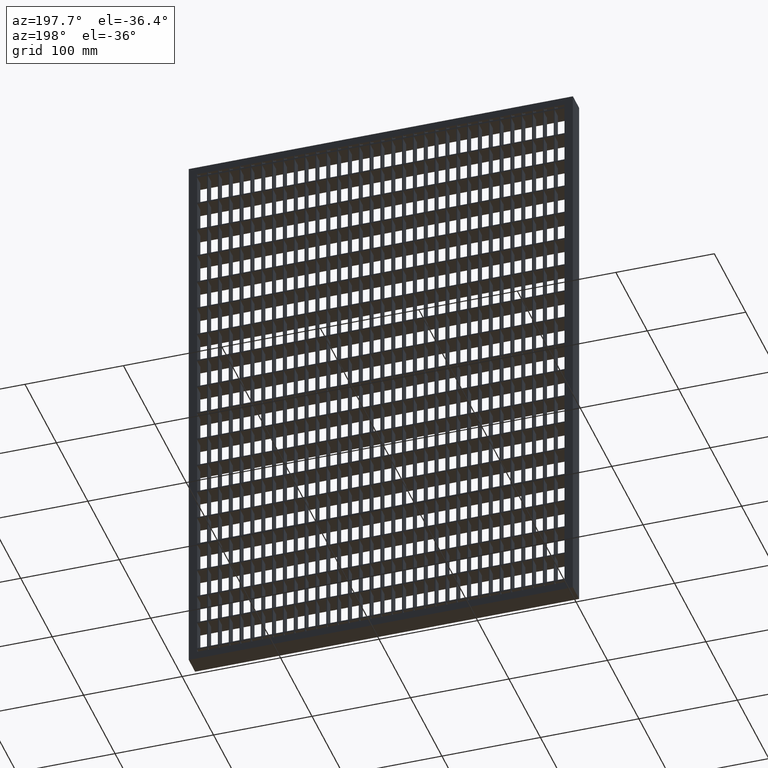
[diagram: clean part render]
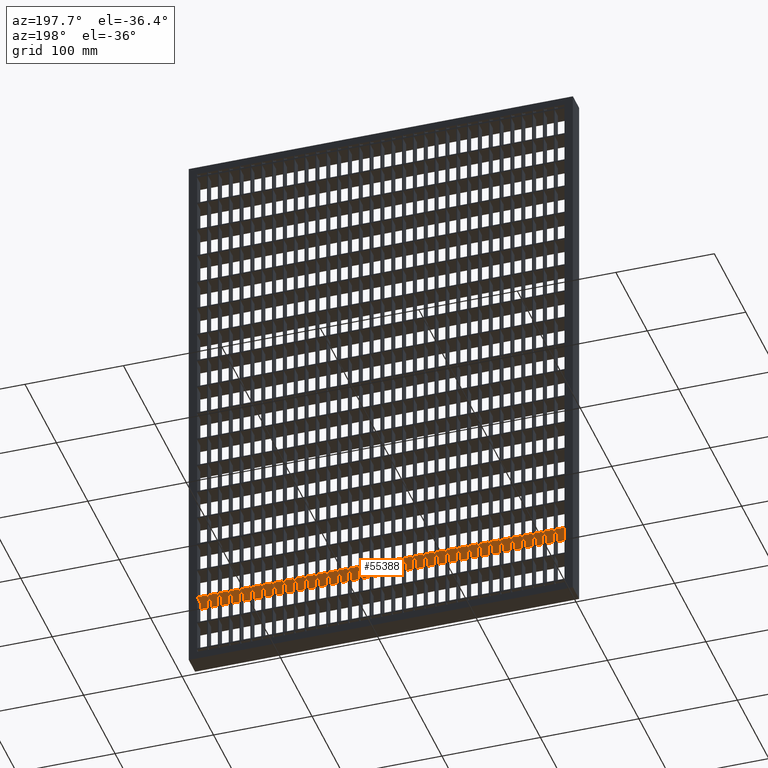
[diagram: same view with one face highlighted and labeled with its STEP entity id]
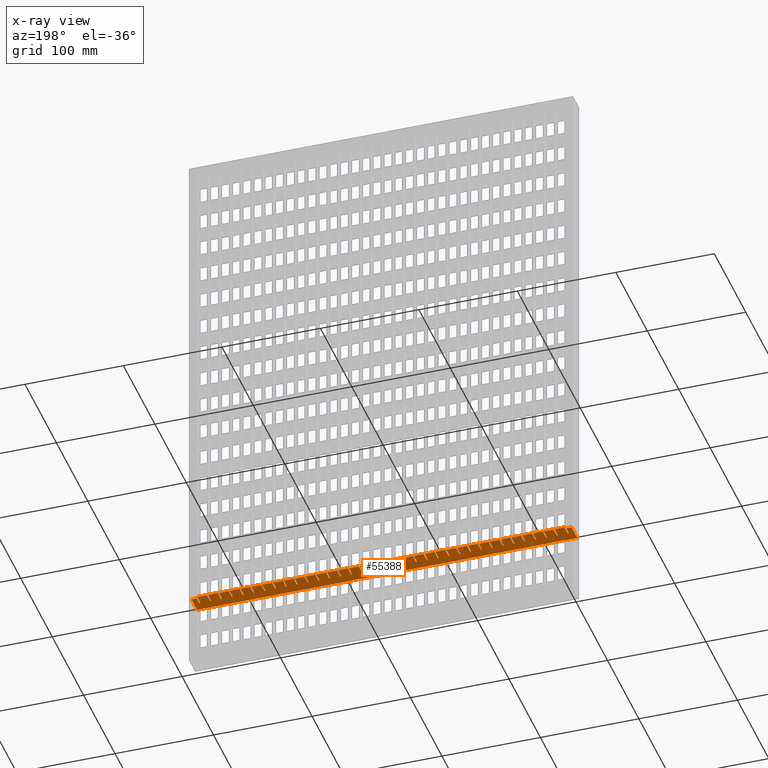
[diagram: x-ray of the same camera — body ghosted, the highlighted face saturated]
A machine part, auxiliary view. The second image highlights one B-rep face of the part: STEP entity #55388.
The next image is the same camera in x-ray: the body ghosted, the highlighted face saturated — about 0% of this face is hidden behind the body in this view.
In plain terms, the highlighted planar face has unit normal (0, 0, 1).
Its self-contained STEP definition (entity closure, byte-faithful):
#111 = DIRECTION ( 'NONE',  ( -1.000000000000000000, 3.061616997868381200E-016, 0.0000000000000000000 ) ) ;
#330 = VERTEX_POINT ( 'NONE', #54887 ) ;
#527 = DIRECTION ( 'NONE',  ( 0.0000000000000000000, -1.000000000000000000, 0.0000000000000000000 ) ) ;
#701 = EDGE_CURVE ( 'NONE', #91569, #58031, #51193, .T. ) ;
#750 = ORIENTED_EDGE ( 'NONE', *, *, #10409, .F. ) ;
#756 = LINE ( 'NONE', #40905, #1855 ) ;
#829 = CARTESIAN_POINT ( 'NONE',  ( 184.5000000000000000, 1.006284330175756500E-015, -516.2499999999996600 ) ) ;
#853 = EDGE_CURVE ( 'NONE', #59870, #63685, #90455, .T. ) ;
#911 = VERTEX_POINT ( 'NONE', #82952 ) ;
#995 = LINE ( 'NONE', #14344, #30990 ) ;
#1077 = LINE ( 'NONE', #89651, #55425 ) ;
#1087 = EDGE_CURVE ( 'NONE', #79020, #69078, #32574, .T. ) ;
#1132 = CARTESIAN_POINT ( 'NONE',  ( 19.50000000000001800, 1.006284330175756500E-015, -516.2499999999996600 ) ) ;
#1135 = CARTESIAN_POINT ( 'NONE',  ( 338.5000000000000000, 2.213477345058793300E-015, -516.2499999999996600 ) ) ;
#1254 = EDGE_CURVE ( 'NONE', #47025, #79050, #5913, .T. ) ;
#1379 = ORIENTED_EDGE ( 'NONE', *, *, #19653, .T. ) ;
#1381 = EDGE_CURVE ( 'NONE', #26603, #86228, #52206, .T. ) ;
#1419 = CARTESIAN_POINT ( 'NONE',  ( 228.5000000000000000, -9.999999999999879200, -516.2499999999996600 ) ) ;
#1475 = VERTEX_POINT ( 'NONE', #45969 ) ;
#1489 = ORIENTED_EDGE ( 'NONE', *, *, #51218, .F. ) ;
#1523 = EDGE_CURVE ( 'NONE', #29134, #92053, #46329, .T. ) ;
#1573 = CARTESIAN_POINT ( 'NONE',  ( 408.0561711201315800, 10.00000000000012100, -516.2499999999996600 ) ) ;
#1693 = CARTESIAN_POINT ( 'NONE',  ( 408.0561711201315800, 10.00000000000012100, -516.2499999999996600 ) ) ;
#1740 = CARTESIAN_POINT ( 'NONE',  ( 283.5000000000001100, 1.705136073566798000E-015, -516.2499999999996600 ) ) ;
#1815 = EDGE_CURVE ( 'NONE', #58156, #22521, #26607, .T. ) ;
#1855 = VECTOR ( 'NONE', #85576, 1000.000000000000000 ) ;
#1920 = VECTOR ( 'NONE', #55518, 1000.000000000000000 ) ;
#1935 = EDGE_CURVE ( 'NONE', #37800, #32755, #40500, .T. ) ;
#1967 = CARTESIAN_POINT ( 'NONE',  ( 408.0561711201315800, 10.00000000000012100, -516.2499999999996600 ) ) ;
#2254 = LINE ( 'NONE', #77813, #38027 ) ;
#2309 = VERTEX_POINT ( 'NONE', #21159 ) ;
#2329 = VERTEX_POINT ( 'NONE', #80951 ) ;
#2505 = LINE ( 'NONE', #71349, #15192 ) ;
#2630 = DIRECTION ( 'NONE',  ( 1.000000000000000000, 3.061616997868381200E-016, -0.0000000000000000000 ) ) ;
#2704 = VECTOR ( 'NONE', #62151, 1000.000000000000000 ) ;
#2709 = DIRECTION ( 'NONE',  ( -0.0000000000000000000, 1.000000000000000000, 0.0000000000000000000 ) ) ;
#2753 = CARTESIAN_POINT ( 'NONE',  ( 238.5000000000000300, 10.00000000000000200, -516.2499999999996600 ) ) ;
#2916 = EDGE_CURVE ( 'NONE', #64257, #34410, #5546, .T. ) ;
#3126 = VECTOR ( 'NONE', #9646, 1000.000000000000000 ) ;
#3270 = VERTEX_POINT ( 'NONE', #39240 ) ;
#3391 = VERTEX_POINT ( 'NONE', #18572 ) ;
#3427 = ORIENTED_EDGE ( 'NONE', *, *, #1523, .F. ) ;
#3496 = VECTOR ( 'NONE', #51093, 1000.000000000000000 ) ;
#3535 = VECTOR ( 'NONE', #79108, 1000.000000000000000 ) ;
#3666 = CARTESIAN_POINT ( 'NONE',  ( 327.5000000000000000, 2.111809090760399300E-015, -516.2499999999996600 ) ) ;
#3730 = CARTESIAN_POINT ( 'NONE',  ( 261.5000000000000600, 10.00000000000007600, -516.2499999999996600 ) ) ;
#3779 = VERTEX_POINT ( 'NONE', #85643 ) ;
#4382 = CARTESIAN_POINT ( 'NONE',  ( 408.0561711201315800, 10.00000000000012100, -516.2499999999996600 ) ) ;
#4503 = ORIENTED_EDGE ( 'NONE', *, *, #61275, .T. ) ;
#4640 = VECTOR ( 'NONE', #17690, 1000.000000000000000 ) ;
#4715 = ORIENTED_EDGE ( 'NONE', *, *, #88222, .F. ) ;
#4841 = LINE ( 'NONE', #49111, #29137 ) ;
#4900 = VECTOR ( 'NONE', #47037, 1000.000000000000000 ) ;
#4978 = ORIENTED_EDGE ( 'NONE', *, *, #95395, .T. ) ;
#5015 = LINE ( 'NONE', #76703, #2704 ) ;
#5075 = DIRECTION ( 'NONE',  ( -0.0000000000000000000, 1.000000000000000000, 0.0000000000000000000 ) ) ;
#5123 = CARTESIAN_POINT ( 'NONE',  ( 316.5000000000001100, 10.00000000000009400, -516.2499999999996600 ) ) ;
#5143 = VECTOR ( 'NONE', #23468, 1000.000000000000000 ) ;
#5268 = LINE ( 'NONE', #91839, #81643 ) ;
#5310 = DIRECTION ( 'NONE',  ( -0.0000000000000000000, 1.000000000000000000, 0.0000000000000000000 ) ) ;
#5392 = CARTESIAN_POINT ( 'NONE',  ( 359.5000000000000600, -9.999999999999879200, -516.2499999999996600 ) ) ;
#5437 = VERTEX_POINT ( 'NONE', #90607 ) ;
#5454 = EDGE_CURVE ( 'NONE', #2309, #95251, #1077, .T. ) ;
#5528 = ORIENTED_EDGE ( 'NONE', *, *, #92034, .T. ) ;
#5546 = LINE ( 'NONE', #94019, #20602 ) ;
#5575 = EDGE_CURVE ( 'NONE', #23434, #35247, #12568, .T. ) ;
#5653 = VERTEX_POINT ( 'NONE', #26831 ) ;
#5673 = AXIS2_PLACEMENT_3D ( 'NONE', #72231, #64816, #11765 ) ;
#5702 = DIRECTION ( 'NONE',  ( -0.0000000000000000000, 1.000000000000000000, 0.0000000000000000000 ) ) ;
#5865 = LINE ( 'NONE', #47553, #25533 ) ;
#5913 = LINE ( 'NONE', #80968, #39467 ) ;
#5987 = CARTESIAN_POINT ( 'NONE',  ( 304.5000000000000000, 0.0000000000000000000, -516.2499999999996600 ) ) ;
#6107 = DIRECTION ( 'NONE',  ( 0.0000000000000000000, -1.000000000000000000, 0.0000000000000000000 ) ) ;
#6186 = ORIENTED_EDGE ( 'NONE', *, *, #73739, .T. ) ;
#6227 = LINE ( 'NONE', #80183, #14288 ) ;
#6377 = ORIENTED_EDGE ( 'NONE', *, *, #63842, .F. ) ;
#6422 = ORIENTED_EDGE ( 'NONE', *, *, #60315, .T. ) ;
#6479 = EDGE_CURVE ( 'NONE', #70901, #62482, #38885, .T. ) ;
#6624 = CARTESIAN_POINT ( 'NONE',  ( 29.50000000000002500, -9.999999999999879200, -516.2499999999996600 ) ) ;
#6670 = VERTEX_POINT ( 'NONE', #829 ) ;
#6879 = LINE ( 'NONE', #89818, #67124 ) ;
#6881 = CARTESIAN_POINT ( 'NONE',  ( 408.0561711201315800, -1.387778780781445700E-014, -516.2499999999996600 ) ) ;
#6887 = LINE ( 'NONE', #81827, #18492 ) ;
#6945 = CARTESIAN_POINT ( 'NONE',  ( 408.0561711201315800, 10.00000000000012100, -516.2499999999996600 ) ) ;
#6975 = CARTESIAN_POINT ( 'NONE',  ( 408.0561711201315800, -1.040834085586084300E-014, -516.2499999999996600 ) ) ;
#7121 = CARTESIAN_POINT ( 'NONE',  ( 327.5000000000000000, -9.999999999999879200, -516.2499999999996600 ) ) ;
#7212 = VECTOR ( 'NONE', #69727, 1000.000000000000000 ) ;
#7493 = LINE ( 'NONE', #29302, #80440 ) ;
#7704 = CARTESIAN_POINT ( 'NONE',  ( 250.5000000000000600, 1.400131310671621700E-015, -516.2499999999996600 ) ) ;
#7946 = LINE ( 'NONE', #72845, #24826 ) ;
#8017 = VERTEX_POINT ( 'NONE', #60698 ) ;
#8261 = VECTOR ( 'NONE', #51771, 1000.000000000000000 ) ;
#8282 = EDGE_CURVE ( 'NONE', #68197, #79559, #93121, .T. ) ;
#8319 = ORIENTED_EDGE ( 'NONE', *, *, #1935, .F. ) ;
#8538 = DIRECTION ( 'NONE',  ( 1.000000000000000000, 3.061616997868381200E-016, -0.0000000000000000000 ) ) ;
#8856 = EDGE_CURVE ( 'NONE', #68197, #48494, #92942, .T. ) ;
#8879 = CARTESIAN_POINT ( 'NONE',  ( 95.50000000000002800, -9.999999999999879200, -516.2499999999996600 ) ) ;
#8905 = CARTESIAN_POINT ( 'NONE',  ( 63.50000000000000000, 10.00000000000000200, -516.2499999999996600 ) ) ;
#8994 = LINE ( 'NONE', #64760, #24036 ) ;
#9127 = LINE ( 'NONE', #75856, #67074 ) ;
#9149 = ORIENTED_EDGE ( 'NONE', *, *, #25205, .T. ) ;
#9228 = DIRECTION ( 'NONE',  ( 1.000000000000000000, 3.061616997868381200E-016, -0.0000000000000000000 ) ) ;
#9349 = ORIENTED_EDGE ( 'NONE', *, *, #51339, .F. ) ;
#9419 = CARTESIAN_POINT ( 'NONE',  ( 41.50000000000000700, 1.006284330175756500E-015, -516.2499999999996600 ) ) ;
#9480 = ORIENTED_EDGE ( 'NONE', *, *, #14377, .F. ) ;
#9503 = VECTOR ( 'NONE', #52550, 1000.000000000000000 ) ;
#9646 = DIRECTION ( 'NONE',  ( -1.000000000000000000, 3.061616997868381200E-016, 0.0000000000000000000 ) ) ;
#9862 = VECTOR ( 'NONE', #30612, 1000.000000000000000 ) ;
#9907 = LINE ( 'NONE', #55835, #64358 ) ;
#10207 = LINE ( 'NONE', #67148, #25242 ) ;
#10222 = VECTOR ( 'NONE', #21469, 1000.000000000000000 ) ;
#10325 = DIRECTION ( 'NONE',  ( -1.000000000000000000, -3.061616997868383100E-016, 0.0000000000000000000 ) ) ;
#10351 = VERTEX_POINT ( 'NONE', #80812 ) ;
#10392 = EDGE_CURVE ( 'NONE', #62774, #83903, #32593, .T. ) ;
#10409 = EDGE_CURVE ( 'NONE', #35247, #63025, #25689, .T. ) ;
#10494 = ORIENTED_EDGE ( 'NONE', *, *, #56017, .T. ) ;
#10502 = CARTESIAN_POINT ( 'NONE',  ( 84.50000000000001400, 7.001226303889181300E-016, -516.2499999999996600 ) ) ;
#10550 = LINE ( 'NONE', #68788, #80002 ) ;
#10578 = EDGE_CURVE ( 'NONE', #8017, #3779, #73090, .T. ) ;
#10694 = EDGE_CURVE ( 'NONE', #58534, #2329, #10550, .T. ) ;
#10814 = EDGE_CURVE ( 'NONE', #91846, #83733, #2505, .T. ) ;
#10819 = DIRECTION ( 'NONE',  ( -1.000000000000000000, 3.061616997868381200E-016, 0.0000000000000000000 ) ) ;
#10989 = VERTEX_POINT ( 'NONE', #22479 ) ;
#11187 = LINE ( 'NONE', #61543, #13518 ) ;
#11322 = LINE ( 'NONE', #15099, #51793 ) ;
#11503 = CARTESIAN_POINT ( 'NONE',  ( 172.5000000000000300, 7.001226303889181300E-016, -516.2499999999996600 ) ) ;
#11554 = EDGE_CURVE ( 'NONE', #63025, #15398, #93834, .T. ) ;
#11559 = DIRECTION ( 'NONE',  ( 1.000000000000000000, 3.061616997868381200E-016, -0.0000000000000000000 ) ) ;
#11708 = CARTESIAN_POINT ( 'NONE',  ( 408.0561711201315800, 10.00000000000012100, -516.2499999999996600 ) ) ;
#11765 = DIRECTION ( 'NONE',  ( 1.000000000000000000, 0.0000000000000000000, -0.0000000000000000000 ) ) ;
#11814 = EDGE_CURVE ( 'NONE', #50154, #86992, #75253, .T. ) ;
#11888 = ORIENTED_EDGE ( 'NONE', *, *, #83345, .T. ) ;
#11900 = LINE ( 'NONE', #68180, #95262 ) ;
#12165 = VECTOR ( 'NONE', #76383, 1000.000000000000000 ) ;
#12219 = ORIENTED_EDGE ( 'NONE', *, *, #52137, .F. ) ;
#12247 = EDGE_CURVE ( 'NONE', #26545, #58031, #23110, .T. ) ;
#12345 = VECTOR ( 'NONE', #68998, 1000.000000000000000 ) ;
#12420 = CARTESIAN_POINT ( 'NONE',  ( 52.50000000000002100, 10.00000000000000200, -516.2499999999996600 ) ) ;
#12425 = EDGE_CURVE ( 'NONE', #28497, #38929, #34538, .T. ) ;
#12439 = CARTESIAN_POINT ( 'NONE',  ( 2.000000000000001800, -10.00000000000000400, -516.2499999999996600 ) ) ;
#12562 = CARTESIAN_POINT ( 'NONE',  ( 408.0561711201315800, 10.00000000000012100, -516.2499999999996600 ) ) ;
#12568 = LINE ( 'NONE', #69529, #84333 ) ;
#12599 = VECTOR ( 'NONE', #9228, 1000.000000000000000 ) ;
#12712 = EDGE_CURVE ( 'NONE', #42978, #16727, #64681, .T. ) ;
#12808 = CARTESIAN_POINT ( 'NONE',  ( 408.0561711201315800, 10.00000000000012100, -516.2499999999996600 ) ) ;
#12865 = VECTOR ( 'NONE', #38528, 1000.000000000000000 ) ;
#12875 = DIRECTION ( 'NONE',  ( -0.0000000000000000000, 1.000000000000000000, 0.0000000000000000000 ) ) ;
#13091 = CARTESIAN_POINT ( 'NONE',  ( 408.0561711201315800, -5.724587470723463400E-014, -516.2499999999996600 ) ) ;
#13155 = DIRECTION ( 'NONE',  ( -0.0000000000000000000, 1.000000000000000000, 0.0000000000000000000 ) ) ;
#13184 = LINE ( 'NONE', #21313, #67553 ) ;
#13212 = VERTEX_POINT ( 'NONE', #83258 ) ;
#13224 = EDGE_CURVE ( 'NONE', #43825, #80033, #30930, .T. ) ;
#13353 = LINE ( 'NONE', #68793, #48027 ) ;
#13384 = DIRECTION ( 'NONE',  ( -0.0000000000000000000, 1.000000000000000000, 0.0000000000000000000 ) ) ;
#13518 = VECTOR ( 'NONE', #23699, 1000.000000000000000 ) ;
#13741 = LINE ( 'NONE', #65806, #91344 ) ;
#13831 = VERTEX_POINT ( 'NONE', #52412 ) ;
#13845 = CARTESIAN_POINT ( 'NONE',  ( 2.000000000000003600, 8.000000000000001800, -516.2499999999996600 ) ) ;
#13903 = CARTESIAN_POINT ( 'NONE',  ( 316.5000000000001100, 2.010140836461974400E-015, -516.2499999999996600 ) ) ;
#13934 = VECTOR ( 'NONE', #76848, 1000.000000000000000 ) ;
#13989 = VECTOR ( 'NONE', #84861, 1000.000000000000000 ) ;
#14107 = VECTOR ( 'NONE', #78746, 1000.000000000000000 ) ;
#14186 = ORIENTED_EDGE ( 'NONE', *, *, #65781, .F. ) ;
#14274 = DIRECTION ( 'NONE',  ( 0.0000000000000000000, -1.000000000000000000, 0.0000000000000000000 ) ) ;
#14288 = VECTOR ( 'NONE', #6107, 1000.000000000000000 ) ;
#14341 = ORIENTED_EDGE ( 'NONE', *, *, #46209, .T. ) ;
#14344 = CARTESIAN_POINT ( 'NONE',  ( 96.50000000000002800, -9.999999999999879200, -516.2499999999996600 ) ) ;
#14377 = EDGE_CURVE ( 'NONE', #48272, #78134, #29456, .T. ) ;
#14469 = VECTOR ( 'NONE', #15039, 1000.000000000000000 ) ;
#14576 = LINE ( 'NONE', #6975, #84022 ) ;
#15039 = DIRECTION ( 'NONE',  ( 0.0000000000000000000, -1.000000000000000000, 0.0000000000000000000 ) ) ;
#15099 = CARTESIAN_POINT ( 'NONE',  ( 338.5000000000000000, -9.999999999999879200, -516.2499999999996600 ) ) ;
#15113 = CARTESIAN_POINT ( 'NONE',  ( 349.5000000000000600, 5.804221233803774300E-016, -516.2499999999996600 ) ) ;
#15172 = CARTESIAN_POINT ( 'NONE',  ( 408.0561711201315800, 10.00000000000012100, -516.2499999999996600 ) ) ;
#15192 = VECTOR ( 'NONE', #85307, 1000.000000000000000 ) ;
#15398 = VERTEX_POINT ( 'NONE', #92344 ) ;
#15457 = EDGE_CURVE ( 'NONE', #17562, #34483, #59359, .T. ) ;
#15525 = EDGE_CURVE ( 'NONE', #95560, #61400, #73112, .T. ) ;
#15585 = VECTOR ( 'NONE', #41400, 1000.000000000000000 ) ;
#15586 = VERTEX_POINT ( 'NONE', #56709 ) ;
#15609 = CARTESIAN_POINT ( 'NONE',  ( 2.000000000000003600, -10.00000000000000000, -516.2499999999996600 ) ) ;
#15673 = EDGE_CURVE ( 'NONE', #32181, #92053, #7946, .T. ) ;
#15701 = ORIENTED_EDGE ( 'NONE', *, *, #66412, .F. ) ;
#15731 = CARTESIAN_POINT ( 'NONE',  ( 348.5000000000000600, 0.0000000000000000000, -516.2499999999996600 ) ) ;
#15817 = VECTOR ( 'NONE', #11559, 1000.000000000000000 ) ;
#15826 = DIRECTION ( 'NONE',  ( -0.0000000000000000000, 1.000000000000000000, 0.0000000000000000000 ) ) ;
#16060 = LINE ( 'NONE', #47589, #18388 ) ;
#16147 = VECTOR ( 'NONE', #35994, 1000.000000000000000 ) ;
#16268 = ORIENTED_EDGE ( 'NONE', *, *, #59301, .T. ) ;
#16443 = CARTESIAN_POINT ( 'NONE',  ( 228.5000000000000300, 1.196794802074833300E-015, -516.2499999999996600 ) ) ;
#16505 = DIRECTION ( 'NONE',  ( -1.000000000000000000, -3.061616997868383100E-016, 0.0000000000000000000 ) ) ;
#16589 = ORIENTED_EDGE ( 'NONE', *, *, #58326, .F. ) ;
#16639 = ORIENTED_EDGE ( 'NONE', *, *, #15525, .T. ) ;
#16650 = ORIENTED_EDGE ( 'NONE', *, *, #80562, .T. ) ;
#16727 = VERTEX_POINT ( 'NONE', #31912 ) ;
#16920 = CARTESIAN_POINT ( 'NONE',  ( 140.5000000000000000, 10.00000000000000200, -516.2499999999996600 ) ) ;
#16961 = DIRECTION ( 'NONE',  ( -1.000000000000000000, -3.061616997868383100E-016, 0.0000000000000000000 ) ) ;
#17049 = EDGE_CURVE ( 'NONE', #58749, #34640, #83428, .T. ) ;
#17102 = CARTESIAN_POINT ( 'NONE',  ( 408.0561711201315800, -6.071532165918824800E-014, -516.2499999999996600 ) ) ;
#17350 = LINE ( 'NONE', #54075, #60213 ) ;
#17459 = CARTESIAN_POINT ( 'NONE',  ( 151.5000000000000300, 1.006284330175756500E-015, -516.2499999999996600 ) ) ;
#17467 = EDGE_CURVE ( 'NONE', #74010, #5653, #65960, .T. ) ;
#17562 = VERTEX_POINT ( 'NONE', #1135 ) ;
#17690 = DIRECTION ( 'NONE',  ( -1.000000000000000000, -3.061616997868383100E-016, 0.0000000000000000000 ) ) ;
#17703 = DIRECTION ( 'NONE',  ( -1.000000000000000000, 0.0000000000000000000, 0.0000000000000000000 ) ) ;
#17729 = ORIENTED_EDGE ( 'NONE', *, *, #1254, .F. ) ;
#17946 = VECTOR ( 'NONE', #22008, 1000.000000000000000 ) ;
#18037 = ORIENTED_EDGE ( 'NONE', *, *, #42108, .T. ) ;
#18081 = VECTOR ( 'NONE', #8538, 1000.000000000000000 ) ;
#18094 = CARTESIAN_POINT ( 'NONE',  ( 217.5000000000000600, -9.999999999999879200, -516.2499999999996600 ) ) ;
#18111 = CARTESIAN_POINT ( 'NONE',  ( 294.5000000000000000, 1.806804327865204400E-015, -516.2499999999996600 ) ) ;
#18175 = DIRECTION ( 'NONE',  ( 0.0000000000000000000, -1.000000000000000000, 0.0000000000000000000 ) ) ;
#18364 = LINE ( 'NONE', #76331, #84381 ) ;
#18388 = VECTOR ( 'NONE', #18175, 1000.000000000000000 ) ;
#18492 = VECTOR ( 'NONE', #23581, 1000.000000000000000 ) ;
#18553 = CARTESIAN_POINT ( 'NONE',  ( 305.5000000000000000, 10.00000000000009100, -516.2499999999996600 ) ) ;
#18572 = CARTESIAN_POINT ( 'NONE',  ( 239.5000000000000600, 10.00000000000006900, -516.2499999999996600 ) ) ;
#18788 = VECTOR ( 'NONE', #80633, 1000.000000000000000 ) ;
#18881 = EDGE_CURVE ( 'NONE', #86954, #13212, #11187, .T. ) ;
#18993 = CARTESIAN_POINT ( 'NONE',  ( 326.5000000000000000, -9.999999999999879200, -516.2499999999996600 ) ) ;
#19021 = ORIENTED_EDGE ( 'NONE', *, *, #12712, .T. ) ;
#19059 = VECTOR ( 'NONE', #66388, 1000.000000000000000 ) ;
#19192 = CARTESIAN_POINT ( 'NONE',  ( 96.50000000000001400, 10.00000000000000200, -516.2499999999996600 ) ) ;
#19434 = CARTESIAN_POINT ( 'NONE',  ( 388.0000000000000000, -10.00000000000000000, -516.2499999999996600 ) ) ;
#19495 = EDGE_CURVE ( 'NONE', #34210, #47158, #59636, .T. ) ;
#19592 = EDGE_CURVE ( 'NONE', #58405, #95545, #92060, .T. ) ;
#19615 = DIRECTION ( 'NONE',  ( -1.000000000000000000, -3.061616997868383100E-016, 0.0000000000000000000 ) ) ;
#19653 = EDGE_CURVE ( 'NONE', #37531, #58486, #5268, .T. ) ;
#19713 = LINE ( 'NONE', #13091, #16147 ) ;
#19770 = VECTOR ( 'NONE', #111, 1000.000000000000000 ) ;
#19880 = EDGE_CURVE ( 'NONE', #10989, #83538, #7493, .T. ) ;
#19888 = CARTESIAN_POINT ( 'NONE',  ( 282.5000000000000600, -9.999999999999879200, -516.2499999999996600 ) ) ;
#19995 = CARTESIAN_POINT ( 'NONE',  ( 74.50000000000001400, 10.00000000000000200, -516.2499999999996600 ) ) ;
#20274 = LINE ( 'NONE', #82244, #75723 ) ;
#20304 = CARTESIAN_POINT ( 'NONE',  ( 370.5000000000000600, -9.999999999999879200, -516.2499999999996600 ) ) ;
#20485 = CARTESIAN_POINT ( 'NONE',  ( 73.50000000000001400, 7.001226303889181300E-016, -516.2499999999996600 ) ) ;
#20602 = VECTOR ( 'NONE', #13155, 1000.000000000000000 ) ;
#21015 = EDGE_CURVE ( 'NONE', #62482, #911, #35123, .T. ) ;
#21104 = CARTESIAN_POINT ( 'NONE',  ( 327.5000000000000000, 10.00000000000009800, -516.2499999999996600 ) ) ;
#21159 = CARTESIAN_POINT ( 'NONE',  ( 40.50000000000000700, 7.001226303889181300E-016, -516.2499999999996600 ) ) ;
#21248 = LINE ( 'NONE', #22553, #65230 ) ;
#21313 = CARTESIAN_POINT ( 'NONE',  ( 272.5000000000000600, -9.999999999999879200, -516.2499999999996600 ) ) ;
#21469 = DIRECTION ( 'NONE',  ( -1.000000000000000000, -3.061616997868383100E-016, 0.0000000000000000000 ) ) ;
#21678 = VECTOR ( 'NONE', #14274, 1000.000000000000000 ) ;
#21700 = VERTEX_POINT ( 'NONE', #27464 ) ;
#21864 = VERTEX_POINT ( 'NONE', #66273 ) ;
#22000 = VERTEX_POINT ( 'NONE', #47454 ) ;
#22008 = DIRECTION ( 'NONE',  ( 1.000000000000000000, 3.061616997868381200E-016, -0.0000000000000000000 ) ) ;
#22128 = ORIENTED_EDGE ( 'NONE', *, *, #93718, .F. ) ;
#22175 = CARTESIAN_POINT ( 'NONE',  ( 206.5000000000000600, -9.999999999999879200, -516.2499999999996600 ) ) ;
#22233 = ORIENTED_EDGE ( 'NONE', *, *, #19880, .F. ) ;
#22479 = CARTESIAN_POINT ( 'NONE',  ( 315.5000000000001100, 10.00000000000000200, -516.2499999999996600 ) ) ;
#22521 = VERTEX_POINT ( 'NONE', #2753 ) ;
#22553 = CARTESIAN_POINT ( 'NONE',  ( 161.5000000000000000, -9.999999999999879200, -516.2499999999996600 ) ) ;
#22668 = DIRECTION ( 'NONE',  ( -1.000000000000000000, -3.061616997868383100E-016, 0.0000000000000000000 ) ) ;
#22834 = CARTESIAN_POINT ( 'NONE',  ( 315.5000000000001100, -9.999999999999879200, -516.2499999999996600 ) ) ;
#23073 = VECTOR ( 'NONE', #12875, 1000.000000000000000 ) ;
#23081 = ORIENTED_EDGE ( 'NONE', *, *, #5575, .F. ) ;
#23110 = LINE ( 'NONE', #56534, #43879 ) ;
#23236 = VECTOR ( 'NONE', #88691, 1000.000000000000000 ) ;
#23306 = FACE_OUTER_BOUND ( 'NONE', #40207, .T. ) ;
#23434 = VERTEX_POINT ( 'NONE', #53025 ) ;
#23468 = DIRECTION ( 'NONE',  ( -0.0000000000000000000, 1.000000000000000000, 0.0000000000000000000 ) ) ;
#23483 = CARTESIAN_POINT ( 'NONE',  ( 408.0561711201315800, 10.00000000000012100, -516.2499999999996600 ) ) ;
#23566 = VERTEX_POINT ( 'NONE', #62397 ) ;
#23581 = DIRECTION ( 'NONE',  ( -0.0000000000000000000, 1.000000000000000000, 0.0000000000000000000 ) ) ;
#23618 = DIRECTION ( 'NONE',  ( 1.000000000000000000, 3.061616997868381200E-016, -0.0000000000000000000 ) ) ;
#23699 = DIRECTION ( 'NONE',  ( -1.000000000000000000, -3.061616997868383100E-016, 0.0000000000000000000 ) ) ;
#23723 = CARTESIAN_POINT ( 'NONE',  ( 8.500000000000007100, 9.999999999999998200, -516.2499999999996600 ) ) ;
#23777 = LINE ( 'NONE', #33092, #34150 ) ;
#24036 = VECTOR ( 'NONE', #72172, 1000.000000000000000 ) ;
#24098 = CARTESIAN_POINT ( 'NONE',  ( 217.5000000000000900, 1.095126547776426900E-015, -516.2499999999996600 ) ) ;
#24166 = EDGE_CURVE ( 'NONE', #63678, #77824, #47969, .T. ) ;
#24272 = VERTEX_POINT ( 'NONE', #76522 ) ;
#24343 = VERTEX_POINT ( 'NONE', #86232 ) ;
#24408 = DIRECTION ( 'NONE',  ( -0.0000000000000000000, 1.000000000000000000, 0.0000000000000000000 ) ) ;
#24579 = VERTEX_POINT ( 'NONE', #58974 ) ;
#24826 = VECTOR ( 'NONE', #5310, 1000.000000000000000 ) ;
#24970 = DIRECTION ( 'NONE',  ( -1.000000000000000000, 3.061616997868381200E-016, 0.0000000000000000000 ) ) ;
#25071 = VECTOR ( 'NONE', #19615, 1000.000000000000000 ) ;
#25089 = ORIENTED_EDGE ( 'NONE', *, *, #18881, .F. ) ;
#25205 = EDGE_CURVE ( 'NONE', #91569, #76682, #33829, .T. ) ;
#25219 = EDGE_CURVE ( 'NONE', #88108, #71018, #28083, .T. ) ;
#25242 = VECTOR ( 'NONE', #75210, 1000.000000000000000 ) ;
#25331 = VERTEX_POINT ( 'NONE', #10502 ) ;
#25380 = ORIENTED_EDGE ( 'NONE', *, *, #19495, .T. ) ;
#25473 = CARTESIAN_POINT ( 'NONE',  ( 408.0561711201315800, 1.110223024625156500E-013, -516.2499999999996600 ) ) ;
#25487 = VECTOR ( 'NONE', #79590, 1000.000000000000000 ) ;
#25532 = CARTESIAN_POINT ( 'NONE',  ( 173.5000000000000300, 1.006284330175756500E-015, -516.2499999999996600 ) ) ;
#25533 = VECTOR ( 'NONE', #57576, 1000.000000000000000 ) ;
#25536 = VERTEX_POINT ( 'NONE', #72245 ) ;
#25664 = VECTOR ( 'NONE', #62210, 1000.000000000000000 ) ;
#25689 = LINE ( 'NONE', #95063, #62731 ) ;
#25714 = ORIENTED_EDGE ( 'NONE', *, *, #30928, .T. ) ;
#25867 = VERTEX_POINT ( 'NONE', #74794 ) ;
#26016 = ORIENTED_EDGE ( 'NONE', *, *, #48071, .F. ) ;
#26019 = CARTESIAN_POINT ( 'NONE',  ( 408.0561711201315800, -2.949029909160572100E-014, -516.2499999999996600 ) ) ;
#26236 = EDGE_CURVE ( 'NONE', #71235, #23434, #94940, .T. ) ;
#26261 = DIRECTION ( 'NONE',  ( -1.000000000000000000, -3.061616997868383100E-016, 0.0000000000000000000 ) ) ;
#26265 = DIRECTION ( 'NONE',  ( -0.0000000000000000000, 1.000000000000000000, 0.0000000000000000000 ) ) ;
#26330 = DIRECTION ( 'NONE',  ( -1.000000000000000000, 3.061616997868381200E-016, 0.0000000000000000000 ) ) ;
#26332 = ORIENTED_EDGE ( 'NONE', *, *, #19592, .F. ) ;
#26385 = ORIENTED_EDGE ( 'NONE', *, *, #56001, .F. ) ;
#26482 = VECTOR ( 'NONE', #89811, 1000.000000000000000 ) ;
#26501 = LINE ( 'NONE', #29635, #38062 ) ;
#26545 = VERTEX_POINT ( 'NONE', #46243 ) ;
#26603 = VERTEX_POINT ( 'NONE', #85099 ) ;
#26607 = LINE ( 'NONE', #88318, #3496 ) ;
#26632 = CARTESIAN_POINT ( 'NONE',  ( 41.50000000000000700, 10.00000000000000200, -516.2499999999996600 ) ) ;
#26808 = ORIENTED_EDGE ( 'NONE', *, *, #17049, .F. ) ;
#26831 = CARTESIAN_POINT ( 'NONE',  ( 349.5000000000000600, 10.00000000000010500, -516.2499999999996600 ) ) ;
#26942 = ORIENTED_EDGE ( 'NONE', *, *, #84295, .T. ) ;
#26995 = EDGE_CURVE ( 'NONE', #69078, #91245, #89744, .T. ) ;
#27024 = CARTESIAN_POINT ( 'NONE',  ( 195.5000000000000000, 10.00000000000000200, -516.2499999999996600 ) ) ;
#27160 = EDGE_CURVE ( 'NONE', #3270, #26545, #75789, .T. ) ;
#27209 = EDGE_CURVE ( 'NONE', #76682, #21700, #13353, .T. ) ;
#27306 = EDGE_CURVE ( 'NONE', #34640, #52554, #9907, .T. ) ;
#27459 = ORIENTED_EDGE ( 'NONE', *, *, #46798, .F. ) ;
#27464 = CARTESIAN_POINT ( 'NONE',  ( 140.5000000000000000, 1.006284330175756500E-015, -516.2499999999996600 ) ) ;
#27507 = VECTOR ( 'NONE', #50470, 1000.000000000000000 ) ;
#27548 = EDGE_CURVE ( 'NONE', #25867, #24272, #70058, .T. ) ;
#28083 = LINE ( 'NONE', #23483, #4900 ) ;
#28271 = EDGE_CURVE ( 'NONE', #31460, #58049, #80309, .T. ) ;
#28332 = LINE ( 'NONE', #51737, #17946 ) ;
#28497 = VERTEX_POINT ( 'NONE', #40068 ) ;
#28511 = VERTEX_POINT ( 'NONE', #25532 ) ;
#28644 = CARTESIAN_POINT ( 'NONE',  ( 62.50000000000000000, -9.999999999999879200, -516.2499999999996600 ) ) ;
#28730 = ORIENTED_EDGE ( 'NONE', *, *, #40906, .F. ) ;
#28840 = LINE ( 'NONE', #59855, #85603 ) ;
#28842 = EDGE_CURVE ( 'NONE', #46640, #26603, #30415, .T. ) ;
#28895 = DIRECTION ( 'NONE',  ( -1.000000000000000000, -3.061616997868383100E-016, 0.0000000000000000000 ) ) ;
#28921 = DIRECTION ( 'NONE',  ( 0.0000000000000000000, -1.000000000000000000, 0.0000000000000000000 ) ) ;
#29014 = LINE ( 'NONE', #82457, #67271 ) ;
#29134 = VERTEX_POINT ( 'NONE', #70583 ) ;
#29137 = VECTOR ( 'NONE', #92793, 1000.000000000000000 ) ;
#29251 = VERTEX_POINT ( 'NONE', #21104 ) ;
#29270 = EDGE_CURVE ( 'NONE', #25867, #63639, #4841, .T. ) ;
#29281 = VERTEX_POINT ( 'NONE', #40705 ) ;
#29302 = CARTESIAN_POINT ( 'NONE',  ( 408.0561711201315800, 10.00000000000012100, -516.2499999999996600 ) ) ;
#29433 = CARTESIAN_POINT ( 'NONE',  ( 408.0561711201315800, 10.00000000000012100, -516.2499999999996600 ) ) ;
#29456 = LINE ( 'NONE', #89423, #31768 ) ;
#29534 = ORIENTED_EDGE ( 'NONE', *, *, #69922, .F. ) ;
#29635 = CARTESIAN_POINT ( 'NONE',  ( 107.5000000000000400, -9.999999999999879200, -516.2499999999996600 ) ) ;
#29666 = CARTESIAN_POINT ( 'NONE',  ( 360.5000000000000600, -9.999999999999879200, -516.2499999999996600 ) ) ;
#29859 = LINE ( 'NONE', #66950, #70441 ) ;
#29924 = EDGE_CURVE ( 'NONE', #58396, #79020, #92652, .T. ) ;
#30018 = EDGE_CURVE ( 'NONE', #58486, #71018, #82243, .T. ) ;
#30148 = CARTESIAN_POINT ( 'NONE',  ( 172.5000000000000300, 10.00000000000004800, -516.2499999999996600 ) ) ;
#30227 = CARTESIAN_POINT ( 'NONE',  ( 30.50000000000002800, 1.006284330175756500E-015, -516.2499999999996600 ) ) ;
#30415 = LINE ( 'NONE', #37933, #87203 ) ;
#30459 = DIRECTION ( 'NONE',  ( 0.0000000000000000000, -1.000000000000000000, 0.0000000000000000000 ) ) ;
#30496 = CARTESIAN_POINT ( 'NONE',  ( 18.50000000000001800, 10.00000000000000200, -516.2499999999996600 ) ) ;
#30518 = EDGE_CURVE ( 'NONE', #83538, #15586, #16060, .T. ) ;
#30554 = ORIENTED_EDGE ( 'NONE', *, *, #53589, .T. ) ;
#30612 = DIRECTION ( 'NONE',  ( 0.0000000000000000000, -1.000000000000000000, 0.0000000000000000000 ) ) ;
#30753 = ORIENTED_EDGE ( 'NONE', *, *, #28842, .T. ) ;
#30905 = DIRECTION ( 'NONE',  ( 0.0000000000000000000, -1.000000000000000000, 0.0000000000000000000 ) ) ;
#30907 = DIRECTION ( 'NONE',  ( -1.000000000000000000, 3.061616997868381200E-016, 0.0000000000000000000 ) ) ;
#30928 = EDGE_CURVE ( 'NONE', #43825, #88641, #29859, .T. ) ;
#30930 = LINE ( 'NONE', #82611, #48292 ) ;
#30936 = VERTEX_POINT ( 'NONE', #59490 ) ;
#30990 = VECTOR ( 'NONE', #73850, 1000.000000000000000 ) ;
#31053 = VECTOR ( 'NONE', #50894, 1000.000000000000000 ) ;
#31093 = CARTESIAN_POINT ( 'NONE',  ( 162.5000000000000000, -9.999999999999879200, -516.2499999999996600 ) ) ;
#31460 = VERTEX_POINT ( 'NONE', #45068 ) ;
#31579 = EDGE_CURVE ( 'NONE', #95251, #32755, #73687, .T. ) ;
#31735 = DIRECTION ( 'NONE',  ( 0.0000000000000000000, -1.000000000000000000, 0.0000000000000000000 ) ) ;
#31751 = ORIENTED_EDGE ( 'NONE', *, *, #29270, .F. ) ;
#31768 = VECTOR ( 'NONE', #52507, 1000.000000000000000 ) ;
#31852 = ORIENTED_EDGE ( 'NONE', *, *, #12247, .T. ) ;
#31912 = CARTESIAN_POINT ( 'NONE',  ( 107.5000000000000100, 1.006284330175756500E-015, -516.2499999999996600 ) ) ;
#32109 = CARTESIAN_POINT ( 'NONE',  ( 283.5000000000001100, -9.999999999999879200, -516.2499999999996600 ) ) ;
#32170 = LINE ( 'NONE', #68725, #94682 ) ;
#32181 = VERTEX_POINT ( 'NONE', #17459 ) ;
#32441 = LINE ( 'NONE', #18094, #88126 ) ;
#32532 = CARTESIAN_POINT ( 'NONE',  ( 272.5000000000000600, 1.603467819268403900E-015, -516.2499999999996600 ) ) ;
#32574 = LINE ( 'NONE', #19888, #33716 ) ;
#32593 = LINE ( 'NONE', #29666, #50006 ) ;
#32610 = ORIENTED_EDGE ( 'NONE', *, *, #1087, .F. ) ;
#32730 = ORIENTED_EDGE ( 'NONE', *, *, #63359, .T. ) ;
#32755 = VERTEX_POINT ( 'NONE', #26632 ) ;
#33086 = ORIENTED_EDGE ( 'NONE', *, *, #31579, .T. ) ;
#33092 = CARTESIAN_POINT ( 'NONE',  ( 408.0561711201315800, 10.00000000000012100, -516.2499999999996600 ) ) ;
#33133 = LINE ( 'NONE', #1967, #36574 ) ;
#33174 = CARTESIAN_POINT ( 'NONE',  ( 408.0561711201315800, 10.00000000000012100, -516.2499999999996600 ) ) ;
#33280 = VECTOR ( 'NONE', #50375, 1000.000000000000000 ) ;
#33412 = VERTEX_POINT ( 'NONE', #13903 ) ;
#33456 = ORIENTED_EDGE ( 'NONE', *, *, #56283, .F. ) ;
#33697 = VERTEX_POINT ( 'NONE', #16443 ) ;
#33716 = VECTOR ( 'NONE', #86218, 1000.000000000000000 ) ;
#33739 = ORIENTED_EDGE ( 'NONE', *, *, #53872, .T. ) ;
#33820 = VERTEX_POINT ( 'NONE', #55541 ) ;
#33829 = LINE ( 'NONE', #37057, #44228 ) ;
#33894 = EDGE_CURVE ( 'NONE', #10351, #64257, #89876, .T. ) ;
#34150 = VECTOR ( 'NONE', #92965, 1000.000000000000000 ) ;
#34210 = VERTEX_POINT ( 'NONE', #30227 ) ;
#34252 = ORIENTED_EDGE ( 'NONE', *, *, #10392, .F. ) ;
#34410 = VERTEX_POINT ( 'NONE', #12420 ) ;
#34463 = EDGE_CURVE ( 'NONE', #15398, #3391, #23777, .T. ) ;
#34483 = VERTEX_POINT ( 'NONE', #77761 ) ;
#34497 = LINE ( 'NONE', #77698, #69223 ) ;
#34538 = LINE ( 'NONE', #35788, #23073 ) ;
#34565 = LINE ( 'NONE', #43141, #31053 ) ;
#34640 = VERTEX_POINT ( 'NONE', #37450 ) ;
#34688 = CARTESIAN_POINT ( 'NONE',  ( 408.0561711201315800, -9.999999999999879200, -516.2499999999996600 ) ) ;
#34783 = DIRECTION ( 'NONE',  ( 0.0000000000000000000, -1.000000000000000000, 0.0000000000000000000 ) ) ;
#34977 = CARTESIAN_POINT ( 'NONE',  ( 360.5000000000000600, 6.820903776787685400E-016, -516.2499999999996600 ) ) ;
#35039 = EDGE_CURVE ( 'NONE', #55455, #36967, #55956, .T. ) ;
#35123 = LINE ( 'NONE', #71571, #62927 ) ;
#35179 = EDGE_CURVE ( 'NONE', #50154, #33820, #6227, .T. ) ;
#35207 = EDGE_CURVE ( 'NONE', #91245, #74546, #13184, .T. ) ;
#35247 = VERTEX_POINT ( 'NONE', #7704 ) ;
#35379 = LINE ( 'NONE', #74934, #9862 ) ;
#35485 = CARTESIAN_POINT ( 'NONE',  ( 348.5000000000000600, 10.00000000000000200, -516.2499999999996600 ) ) ;
#35507 = LINE ( 'NONE', #72942, #44808 ) ;
#35548 = LINE ( 'NONE', #7121, #27507 ) ;
#35583 = DIRECTION ( 'NONE',  ( -1.000000000000000000, 0.0000000000000000000, 0.0000000000000000000 ) ) ;
#35788 = CARTESIAN_POINT ( 'NONE',  ( 271.5000000000000600, -9.999999999999879200, -516.2499999999996600 ) ) ;
#35798 = VERTEX_POINT ( 'NONE', #59206 ) ;
#35855 = DIRECTION ( 'NONE',  ( -1.000000000000000000, -3.061616997868383100E-016, 0.0000000000000000000 ) ) ;
#35994 = DIRECTION ( 'NONE',  ( -1.000000000000000000, 3.061616997868381200E-016, 0.0000000000000000000 ) ) ;
#36092 = ORIENTED_EDGE ( 'NONE', *, *, #64735, .T. ) ;
#36396 = ORIENTED_EDGE ( 'NONE', *, *, #29924, .F. ) ;
#36406 = VECTOR ( 'NONE', #47744, 1000.000000000000000 ) ;
#36430 = CARTESIAN_POINT ( 'NONE',  ( 337.5000000000000000, 10.00000000000000200, -516.2499999999996600 ) ) ;
#36558 = CARTESIAN_POINT ( 'NONE',  ( 217.5000000000000900, 10.00000000000006200, -516.2499999999996600 ) ) ;
#36568 = DIRECTION ( 'NONE',  ( 0.0000000000000000000, -1.000000000000000000, 0.0000000000000000000 ) ) ;
#36574 = VECTOR ( 'NONE', #16505, 1000.000000000000000 ) ;
#36684 = ORIENTED_EDGE ( 'NONE', *, *, #34463, .F. ) ;
#36732 = EDGE_CURVE ( 'NONE', #63930, #50635, #93956, .T. ) ;
#36967 = VERTEX_POINT ( 'NONE', #80408 ) ;
#36995 = LINE ( 'NONE', #55178, #4640 ) ;
#37012 = CARTESIAN_POINT ( 'NONE',  ( 408.0561711201315800, 10.00000000000012100, -516.2499999999996600 ) ) ;
#37057 = CARTESIAN_POINT ( 'NONE',  ( 139.5000000000000000, -9.999999999999879200, -516.2499999999996600 ) ) ;
#37133 = EDGE_CURVE ( 'NONE', #22521, #61404, #82256, .T. ) ;
#37237 = VECTOR ( 'NONE', #24408, 1000.000000000000000 ) ;
#37331 = CARTESIAN_POINT ( 'NONE',  ( 150.5000000000000300, -9.999999999999879200, -516.2499999999996600 ) ) ;
#37450 = CARTESIAN_POINT ( 'NONE',  ( 381.5000000000000600, 1.006284330175756500E-015, -516.2499999999996600 ) ) ;
#37531 = VERTEX_POINT ( 'NONE', #20485 ) ;
#37625 = ORIENTED_EDGE ( 'NONE', *, *, #26236, .F. ) ;
#37770 = VECTOR ( 'NONE', #94621, 1000.000000000000000 ) ;
#37800 = VERTEX_POINT ( 'NONE', #67013 ) ;
#37818 = LINE ( 'NONE', #22175, #74882 ) ;
#37933 = CARTESIAN_POINT ( 'NONE',  ( 408.0561711201315800, 7.632783294297951200E-014, -516.2499999999996600 ) ) ;
#38027 = VECTOR ( 'NONE', #93333, 1000.000000000000000 ) ;
#38062 = VECTOR ( 'NONE', #80780, 1000.000000000000000 ) ;
#38146 = CARTESIAN_POINT ( 'NONE',  ( 7.500000000000007100, 8.000000000000001800, -516.2499999999996600 ) ) ;
#38236 = ORIENTED_EDGE ( 'NONE', *, *, #17467, .F. ) ;
#38403 = DIRECTION ( 'NONE',  ( 1.000000000000000000, 3.061616997868381200E-016, -0.0000000000000000000 ) ) ;
#38504 = VECTOR ( 'NONE', #24970, 1000.000000000000000 ) ;
#38528 = DIRECTION ( 'NONE',  ( -0.0000000000000000000, 1.000000000000000000, 0.0000000000000000000 ) ) ;
#38547 = EDGE_CURVE ( 'NONE', #81751, #53312, #77430, .T. ) ;
#38554 = ORIENTED_EDGE ( 'NONE', *, *, #68232, .F. ) ;
#38885 = LINE ( 'NONE', #85630, #37770 ) ;
#38929 = VERTEX_POINT ( 'NONE', #95706 ) ;
#38963 = CARTESIAN_POINT ( 'NONE',  ( 51.49999999999999300, -9.999999999999879200, -516.2499999999996600 ) ) ;
#39066 = DIRECTION ( 'NONE',  ( -0.0000000000000000000, 1.000000000000000000, 0.0000000000000000000 ) ) ;
#39106 = VECTOR ( 'NONE', #36568, 1000.000000000000000 ) ;
#39240 = CARTESIAN_POINT ( 'NONE',  ( 128.5000000000000000, 7.001226303889181300E-016, -516.2499999999996600 ) ) ;
#39285 = ORIENTED_EDGE ( 'NONE', *, *, #11814, .F. ) ;
#39367 = VECTOR ( 'NONE', #83931, 1000.000000000000000 ) ;
#39407 = EDGE_CURVE ( 'NONE', #47390, #74010, #59879, .T. ) ;
#39467 = VECTOR ( 'NONE', #89690, 1000.000000000000000 ) ;
#39674 = EDGE_CURVE ( 'NONE', #33820, #35798, #94516, .T. ) ;
#39725 = LINE ( 'NONE', #86828, #86118 ) ;
#39774 = DIRECTION ( 'NONE',  ( -1.000000000000000000, -3.061616997868383100E-016, 0.0000000000000000000 ) ) ;
#40068 = CARTESIAN_POINT ( 'NONE',  ( 271.5000000000000600, 0.0000000000000000000, -516.2499999999996600 ) ) ;
#40207 = EDGE_LOOP ( 'NONE', ( #79214, #91286, #10494, #16639, #27459, #39285, #43121, #80981, #6422, #90091, #25714, #52423, #52348, #17729, #32730, #11888, #25380, #78072, #33739, #41756, #33086, #8319, #18037, #93885, #84904, #59718, #84402, #48835, #88173, #58624, #92575, #1379, #43802, #55900, #54875, #5528, #14341, #43784, #78415, #16650, #59837, #70861, #36092, #19021, #58903, #57924, #86408, #43039, #52181, #12219, #92204, #84158, #31852, #43770, #9149, #70595, #26942, #31751, #59092, #71592, #50774, #3427, #79377, #30753, #69660, #51510, #30554, #71997, #63070, #81010, #4503, #4978, #16268, #52755, #46481, #6186, #65378, #26016, #26332, #90842, #1489, #93617, #69269, #33456, #69501, #55211, #60498, #79779, #77346, #48467, #80986, #38554, #61029, #36684, #76100, #750, #23081, #37625, #22128, #51252, #85470, #53428, #83145, #29534, #50413, #52478, #32610, #36396, #28730, #61312, #70521, #58543, #88559, #86520, #9480, #63694, #41000, #22233, #14186, #71945, #60015, #26385, #43795, #16589, #52965, #9349, #71927, #53174, #62564, #25089, #6377, #15701, #4715, #38236, #43318, #52310, #34252, #63202, #81304, #66457, #55948, #54649, #71372, #26808 ) ) ;
#40263 = LINE ( 'NONE', #12562, #33280 ) ;
#40500 = LINE ( 'NONE', #15172, #57864 ) ;
#40523 = CARTESIAN_POINT ( 'NONE',  ( 408.0561711201315800, 10.00000000000012100, -516.2499999999996600 ) ) ;
#40681 = VERTEX_POINT ( 'NONE', #57101 ) ;
#40699 = DIRECTION ( 'NONE',  ( -0.0000000000000000000, 1.000000000000000000, 0.0000000000000000000 ) ) ;
#40705 = CARTESIAN_POINT ( 'NONE',  ( 239.5000000000000600, 1.298463056373221300E-015, -516.2499999999996600 ) ) ;
#40761 = LINE ( 'NONE', #6881, #18788 ) ;
#40826 = DIRECTION ( 'NONE',  ( -0.0000000000000000000, 1.000000000000000000, 0.0000000000000000000 ) ) ;
#40905 = CARTESIAN_POINT ( 'NONE',  ( 408.0561711201315800, -3.295974604355933500E-014, -516.2499999999996600 ) ) ;
#40906 = EDGE_CURVE ( 'NONE', #40681, #58396, #41725, .T. ) ;
#41000 = ORIENTED_EDGE ( 'NONE', *, *, #30518, .F. ) ;
#41313 = VECTOR ( 'NONE', #2709, 1000.000000000000000 ) ;
#41331 = CARTESIAN_POINT ( 'NONE',  ( 205.5000000000000600, -9.999999999999879200, -516.2499999999996600 ) ) ;
#41345 = CARTESIAN_POINT ( 'NONE',  ( 371.5000000000000600, 7.837586319771611300E-016, -516.2499999999996600 ) ) ;
#41400 = DIRECTION ( 'NONE',  ( -0.0000000000000000000, 1.000000000000000000, 0.0000000000000000000 ) ) ;
#41725 = LINE ( 'NONE', #32109, #39367 ) ;
#41743 = VERTEX_POINT ( 'NONE', #41345 ) ;
#41756 = ORIENTED_EDGE ( 'NONE', *, *, #5454, .T. ) ;
#42108 = EDGE_CURVE ( 'NONE', #37800, #10351, #80874, .T. ) ;
#42196 = VECTOR ( 'NONE', #26261, 1000.000000000000000 ) ;
#42468 = DIRECTION ( 'NONE',  ( -1.000000000000000000, -3.061616997868383100E-016, 0.0000000000000000000 ) ) ;
#42490 = VECTOR ( 'NONE', #68649, 1000.000000000000000 ) ;
#42491 = CARTESIAN_POINT ( 'NONE',  ( 118.5000000000000000, -9.999999999999879200, -516.2499999999996600 ) ) ;
#42591 = EDGE_CURVE ( 'NONE', #86633, #83733, #995, .T. ) ;
#42650 = VECTOR ( 'NONE', #87717, 1000.000000000000000 ) ;
#42833 = CARTESIAN_POINT ( 'NONE',  ( 293.5000000000000600, 10.00000000000000200, -516.2499999999996600 ) ) ;
#42978 = VERTEX_POINT ( 'NONE', #91294 ) ;
#43004 = CARTESIAN_POINT ( 'NONE',  ( 408.0561711201315800, 10.00000000000012100, -516.2499999999996600 ) ) ;
#43039 = ORIENTED_EDGE ( 'NONE', *, *, #63954, .T. ) ;
#43121 = ORIENTED_EDGE ( 'NONE', *, *, #35179, .T. ) ;
#43127 = EDGE_CURVE ( 'NONE', #3779, #58749, #47063, .T. ) ;
#43141 = CARTESIAN_POINT ( 'NONE',  ( 408.0561711201315800, -5.030698080332740600E-014, -516.2499999999996600 ) ) ;
#43277 = EDGE_CURVE ( 'NONE', #49636, #86228, #33133, .T. ) ;
#43316 = VECTOR ( 'NONE', #13384, 1000.000000000000000 ) ;
#43318 = ORIENTED_EDGE ( 'NONE', *, *, #39407, .F. ) ;
#43442 = LINE ( 'NONE', #1419, #82713 ) ;
#43599 = DIRECTION ( 'NONE',  ( 0.0000000000000000000, -1.000000000000000000, 0.0000000000000000000 ) ) ;
#43729 = VERTEX_POINT ( 'NONE', #1132 ) ;
#43770 = ORIENTED_EDGE ( 'NONE', *, *, #701, .F. ) ;
#43784 = ORIENTED_EDGE ( 'NONE', *, *, #86409, .F. ) ;
#43795 = ORIENTED_EDGE ( 'NONE', *, *, #36732, .F. ) ;
#43802 = ORIENTED_EDGE ( 'NONE', *, *, #30018, .T. ) ;
#43825 = VERTEX_POINT ( 'NONE', #30496 ) ;
#43879 = VECTOR ( 'NONE', #40699, 1000.000000000000000 ) ;
#44019 = CARTESIAN_POINT ( 'NONE',  ( 315.5000000000001100, 0.0000000000000000000, -516.2499999999996600 ) ) ;
#44228 = VECTOR ( 'NONE', #90429, 1000.000000000000000 ) ;
#44397 = LINE ( 'NONE', #45997, #68715 ) ;
#44707 = VERTEX_POINT ( 'NONE', #5123 ) ;
#44754 = VECTOR ( 'NONE', #2630, 1000.000000000000000 ) ;
#44808 = VECTOR ( 'NONE', #64601, 1000.000000000000000 ) ;
#45068 = CARTESIAN_POINT ( 'NONE',  ( 195.5000000000000000, 1.006284330175756500E-015, -516.2499999999996600 ) ) ;
#45184 = VECTOR ( 'NONE', #48173, 1000.000000000000000 ) ;
#45200 = CARTESIAN_POINT ( 'NONE',  ( 326.5000000000000000, 10.00000000000000200, -516.2499999999996600 ) ) ;
#45286 = CARTESIAN_POINT ( 'NONE',  ( 30.50000000000002800, 10.00000000000000200, -516.2499999999996600 ) ) ;
#45447 = VECTOR ( 'NONE', #35855, 1000.000000000000000 ) ;
#45472 = LINE ( 'NONE', #26019, #83748 ) ;
#45601 = VERTEX_POINT ( 'NONE', #60876 ) ;
#45680 = DIRECTION ( 'NONE',  ( -1.000000000000000000, 3.061616997868381200E-016, 0.0000000000000000000 ) ) ;
#45808 = CARTESIAN_POINT ( 'NONE',  ( 272.5000000000000600, 10.00000000000008000, -516.2499999999996600 ) ) ;
#45936 = LINE ( 'NONE', #95754, #69143 ) ;
#45935 = DIRECTION ( 'NONE',  ( 1.000000000000000000, 3.061616997868381200E-016, -0.0000000000000000000 ) ) ;
#45969 = CARTESIAN_POINT ( 'NONE',  ( 206.5000000000000600, 10.00000000000005900, -516.2499999999996600 ) ) ;
#45997 = CARTESIAN_POINT ( 'NONE',  ( 408.0561711201315800, -2.255140518769849200E-014, -516.2499999999996600 ) ) ;
#46102 = CARTESIAN_POINT ( 'NONE',  ( 19.50000000000001800, -9.999999999999879200, -516.2499999999996600 ) ) ;
#46209 = EDGE_CURVE ( 'NONE', #21864, #73455, #47351, .T. ) ;
#46243 = CARTESIAN_POINT ( 'NONE',  ( 129.5000000000000000, 1.006284330175756500E-015, -516.2499999999996600 ) ) ;
#46270 = CARTESIAN_POINT ( 'NONE',  ( 216.5000000000000600, -9.999999999999879200, -516.2499999999996600 ) ) ;
#46329 = LINE ( 'NONE', #61511, #69457 ) ;
#46481 = ORIENTED_EDGE ( 'NONE', *, *, #8282, .T. ) ;
#46499 = DIRECTION ( 'NONE',  ( 1.000000000000000000, 3.061616997868381200E-016, -0.0000000000000000000 ) ) ;
#46500 = CARTESIAN_POINT ( 'NONE',  ( 261.5000000000000600, 1.501799564970015900E-015, -516.2499999999996600 ) ) ;
#46640 = VERTEX_POINT ( 'NONE', #80954 ) ;
#46715 = CARTESIAN_POINT ( 'NONE',  ( 183.5000000000000000, -9.999999999999879200, -516.2499999999996600 ) ) ;
#46798 = EDGE_CURVE ( 'NONE', #86992, #61400, #90867, .T. ) ;
#46827 = EDGE_CURVE ( 'NONE', #51115, #71099, #70048, .T. ) ;
#46882 = VECTOR ( 'NONE', #61992, 1000.000000000000000 ) ;
#46883 = CARTESIAN_POINT ( 'NONE',  ( 408.0561711201315800, 1.249000902703301100E-013, -516.2499999999996600 ) ) ;
#47025 = VERTEX_POINT ( 'NONE', #77647 ) ;
#47037 = DIRECTION ( 'NONE',  ( -1.000000000000000000, -3.061616997868383100E-016, 0.0000000000000000000 ) ) ;
#47063 = LINE ( 'NONE', #70880, #21678 ) ;
#47158 = VERTEX_POINT ( 'NONE', #45286 ) ;
#47206 = LINE ( 'NONE', #51759, #91243 ) ;
#47351 = LINE ( 'NONE', #59160, #70458 ) ;
#47390 = VERTEX_POINT ( 'NONE', #48470 ) ;
#47414 = CARTESIAN_POINT ( 'NONE',  ( 282.5000000000000600, 10.00000000000000200, -516.2499999999996600 ) ) ;
#47454 = CARTESIAN_POINT ( 'NONE',  ( 173.5000000000000300, 10.00000000000000200, -516.2499999999996600 ) ) ;
#47553 = CARTESIAN_POINT ( 'NONE',  ( 408.0561711201315800, 10.00000000000012100, -516.2499999999996600 ) ) ;
#47587 = CARTESIAN_POINT ( 'NONE',  ( 95.49999999999997200, 10.00000000000002700, -516.2499999999996600 ) ) ;
#47589 = CARTESIAN_POINT ( 'NONE',  ( 305.5000000000000000, -9.999999999999879200, -516.2499999999996600 ) ) ;
#47595 = CARTESIAN_POINT ( 'NONE',  ( 408.0561711201315800, -1.734723475976807100E-014, -516.2499999999996600 ) ) ;
#47603 = CARTESIAN_POINT ( 'NONE',  ( 74.50000000000001400, 1.006284330175756500E-015, -516.2499999999996600 ) ) ;
#47744 = DIRECTION ( 'NONE',  ( 1.000000000000000000, 3.061616997868381200E-016, -0.0000000000000000000 ) ) ;
#47969 = LINE ( 'NONE', #61973, #72309 ) ;
#48027 = VECTOR ( 'NONE', #76232, 1000.000000000000000 ) ;
#48071 = EDGE_CURVE ( 'NONE', #95545, #58049, #65139, .T. ) ;
#48173 = DIRECTION ( 'NONE',  ( 0.0000000000000000000, -1.000000000000000000, 0.0000000000000000000 ) ) ;
#48217 = CARTESIAN_POINT ( 'NONE',  ( 106.5000000000000400, -9.999999999999879200, -516.2499999999996600 ) ) ;
#48269 = DIRECTION ( 'NONE',  ( -1.000000000000000000, 3.061616997868381200E-016, 0.0000000000000000000 ) ) ;
#48272 = VERTEX_POINT ( 'NONE', #5987 ) ;
#48292 = VECTOR ( 'NONE', #60617, 1000.000000000000000 ) ;
#48467 = ORIENTED_EDGE ( 'NONE', *, *, #37133, .F. ) ;
#48470 = CARTESIAN_POINT ( 'NONE',  ( 359.5000000000000600, 0.0000000000000000000, -516.2499999999996600 ) ) ;
#48494 = VERTEX_POINT ( 'NONE', #75457 ) ;
#48792 = CARTESIAN_POINT ( 'NONE',  ( 18.50000000000001800, 7.001226303889181300E-016, -516.2499999999996600 ) ) ;
#48796 = EDGE_CURVE ( 'NONE', #34483, #89252, #61389, .T. ) ;
#48835 = ORIENTED_EDGE ( 'NONE', *, *, #76169, .T. ) ;
#48949 = VERTEX_POINT ( 'NONE', #57598 ) ;
#49093 = VECTOR ( 'NONE', #58906, 1000.000000000000000 ) ;
#49111 = CARTESIAN_POINT ( 'NONE',  ( 408.0561711201315800, 10.00000000000012100, -516.2499999999996600 ) ) ;
#49545 = CARTESIAN_POINT ( 'NONE',  ( 326.5000000000000000, 0.0000000000000000000, -516.2499999999996600 ) ) ;
#49617 = LINE ( 'NONE', #57911, #42650 ) ;
#49636 = VERTEX_POINT ( 'NONE', #30148 ) ;
#49661 = EDGE_CURVE ( 'NONE', #3391, #29281, #17350, .T. ) ;
#49705 = VECTOR ( 'NONE', #50927, 1000.000000000000000 ) ;
#49850 = CARTESIAN_POINT ( 'NONE',  ( 63.50000000000000000, 1.006284330175756500E-015, -516.2499999999996600 ) ) ;
#50006 = VECTOR ( 'NONE', #43599, 1000.000000000000000 ) ;
#50116 = EDGE_CURVE ( 'NONE', #57902, #28511, #28840, .T. ) ;
#50148 = CARTESIAN_POINT ( 'NONE',  ( 408.0561711201315800, 10.00000000000012100, -516.2499999999996600 ) ) ;
#50154 = VERTEX_POINT ( 'NONE', #38146 ) ;
#50235 = EDGE_CURVE ( 'NONE', #71099, #1475, #18364, .T. ) ;
#50346 = VECTOR ( 'NONE', #62382, 1000.000000000000000 ) ;
#50374 = VECTOR ( 'NONE', #74962, 1000.000000000000000 ) ;
#50375 = DIRECTION ( 'NONE',  ( -1.000000000000000000, -3.061616997868383100E-016, 0.0000000000000000000 ) ) ;
#50413 = ORIENTED_EDGE ( 'NONE', *, *, #35207, .F. ) ;
#50470 = DIRECTION ( 'NONE',  ( 0.0000000000000000000, -1.000000000000000000, 0.0000000000000000000 ) ) ;
#50518 = CARTESIAN_POINT ( 'NONE',  ( 349.5000000000000600, -9.999999999999879200, -516.2499999999996600 ) ) ;
#50635 = VERTEX_POINT ( 'NONE', #45200 ) ;
#50774 = ORIENTED_EDGE ( 'NONE', *, *, #15673, .T. ) ;
#50894 = DIRECTION ( 'NONE',  ( -1.000000000000000000, 3.061616997868381200E-016, 0.0000000000000000000 ) ) ;
#50916 = CARTESIAN_POINT ( 'NONE',  ( 238.5000000000000300, 0.0000000000000000000, -516.2499999999996600 ) ) ;
#50927 = DIRECTION ( 'NONE',  ( -1.000000000000000000, -3.061616997868383100E-016, 0.0000000000000000000 ) ) ;
#51090 = EDGE_CURVE ( 'NONE', #33412, #56892, #35507, .T. ) ;
#51093 = DIRECTION ( 'NONE',  ( -0.0000000000000000000, 1.000000000000000000, 0.0000000000000000000 ) ) ;
#51115 = VERTEX_POINT ( 'NONE', #94637 ) ;
#51183 = VERTEX_POINT ( 'NONE', #95611 ) ;
#51193 = LINE ( 'NONE', #66814, #9503 ) ;
#51218 = EDGE_CURVE ( 'NONE', #1475, #48949, #37818, .T. ) ;
#51252 = ORIENTED_EDGE ( 'NONE', *, *, #21015, .F. ) ;
#51339 = EDGE_CURVE ( 'NONE', #89252, #29251, #79550, .T. ) ;
#51403 = VECTOR ( 'NONE', #63900, 1000.000000000000000 ) ;
#51470 = EDGE_CURVE ( 'NONE', #56960, #53312, #53986, .T. ) ;
#51510 = ORIENTED_EDGE ( 'NONE', *, *, #43277, .F. ) ;
#51678 = DIRECTION ( 'NONE',  ( 0.0000000000000000000, -1.000000000000000000, 0.0000000000000000000 ) ) ;
#51737 = CARTESIAN_POINT ( 'NONE',  ( 408.0561711201315800, 7.979727989493312600E-014, -516.2499999999996600 ) ) ;
#51759 = CARTESIAN_POINT ( 'NONE',  ( 408.0561711201315800, -3.989863994746656300E-014, -516.2499999999996600 ) ) ;
#51771 = DIRECTION ( 'NONE',  ( -1.000000000000000000, -3.061616997868383100E-016, 0.0000000000000000000 ) ) ;
#51793 = VECTOR ( 'NONE', #53544, 1000.000000000000000 ) ;
#52105 = CARTESIAN_POINT ( 'NONE',  ( 195.5000000000000000, -9.999999999999879200, -516.2499999999996600 ) ) ;
#52137 = EDGE_CURVE ( 'NONE', #51183, #55467, #55148, .T. ) ;
#52181 = ORIENTED_EDGE ( 'NONE', *, *, #94975, .T. ) ;
#52206 = LINE ( 'NONE', #31093, #12865 ) ;
#52310 = ORIENTED_EDGE ( 'NONE', *, *, #76462, .F. ) ;
#52348 = ORIENTED_EDGE ( 'NONE', *, *, #57849, .T. ) ;
#52412 = CARTESIAN_POINT ( 'NONE',  ( 370.5000000000000600, 0.0000000000000000000, -516.2499999999996600 ) ) ;
#52423 = ORIENTED_EDGE ( 'NONE', *, *, #76707, .T. ) ;
#52478 = ORIENTED_EDGE ( 'NONE', *, *, #26995, .F. ) ;
#52507 = DIRECTION ( 'NONE',  ( -0.0000000000000000000, 1.000000000000000000, 0.0000000000000000000 ) ) ;
#52550 = DIRECTION ( 'NONE',  ( -1.000000000000000000, -3.061616997868383100E-016, 0.0000000000000000000 ) ) ;
#52554 = VERTEX_POINT ( 'NONE', #83587 ) ;
#52591 = CARTESIAN_POINT ( 'NONE',  ( 408.0561711201315800, 9.367506770274758300E-014, -516.2499999999996600 ) ) ;
#52696 = DIRECTION ( 'NONE',  ( 0.0000000000000000000, -1.000000000000000000, 0.0000000000000000000 ) ) ;
#52723 = VERTEX_POINT ( 'NONE', #3666 ) ;
#52755 = ORIENTED_EDGE ( 'NONE', *, *, #8856, .F. ) ;
#52888 = DIRECTION ( 'NONE',  ( 0.0000000000000000000, -1.000000000000000000, 0.0000000000000000000 ) ) ;
#52925 = VERTEX_POINT ( 'NONE', #36558 ) ;
#52965 = ORIENTED_EDGE ( 'NONE', *, *, #62143, .F. ) ;
#53025 = CARTESIAN_POINT ( 'NONE',  ( 250.5000000000000600, 10.00000000000007300, -516.2499999999996600 ) ) ;
#53071 = DIRECTION ( 'NONE',  ( 1.000000000000000000, 3.061616997868381200E-016, -0.0000000000000000000 ) ) ;
#53174 = ORIENTED_EDGE ( 'NONE', *, *, #15457, .F. ) ;
#53187 = EDGE_CURVE ( 'NONE', #24272, #32181, #28332, .T. ) ;
#53312 = VERTEX_POINT ( 'NONE', #8905 ) ;
#53419 = VECTOR ( 'NONE', #17703, 1000.000000000000000 ) ;
#53428 = ORIENTED_EDGE ( 'NONE', *, *, #80143, .F. ) ;
#53527 = LINE ( 'NONE', #43004, #45447 ) ;
#53544 = DIRECTION ( 'NONE',  ( 0.0000000000000000000, -1.000000000000000000, 0.0000000000000000000 ) ) ;
#53589 = EDGE_CURVE ( 'NONE', #49636, #57902, #73377, .T. ) ;
#53805 = CARTESIAN_POINT ( 'NONE',  ( 408.0561711201315800, 10.00000000000012100, -516.2499999999996600 ) ) ;
#53872 = EDGE_CURVE ( 'NONE', #24343, #2309, #20274, .T. ) ;
#53986 = LINE ( 'NONE', #40523, #12345 ) ;
#54030 = LINE ( 'NONE', #17102, #3126 ) ;
#54075 = CARTESIAN_POINT ( 'NONE',  ( 239.5000000000000300, -9.999999999999879200, -516.2499999999996600 ) ) ;
#54413 = CARTESIAN_POINT ( 'NONE',  ( 95.50000000000001400, 7.001226303889181300E-016, -516.2499999999996600 ) ) ;
#54539 = DIRECTION ( 'NONE',  ( 0.0000000000000000000, -1.000000000000000000, 0.0000000000000000000 ) ) ;
#54649 = ORIENTED_EDGE ( 'NONE', *, *, #84783, .F. ) ;
#54802 = DIRECTION ( 'NONE',  ( -0.0000000000000000000, 1.000000000000000000, 0.0000000000000000000 ) ) ;
#54863 = CARTESIAN_POINT ( 'NONE',  ( 194.9999999999999700, 8.000000000000001800, -516.2499999999996600 ) ) ;
#54875 = ORIENTED_EDGE ( 'NONE', *, *, #71292, .T. ) ;
#54887 = CARTESIAN_POINT ( 'NONE',  ( 370.5000000000000600, 10.00000000000000200, -516.2499999999996600 ) ) ;
#54910 = LINE ( 'NONE', #85766, #15585 ) ;
#55148 = LINE ( 'NONE', #12808, #25071 ) ;
#55178 = CARTESIAN_POINT ( 'NONE',  ( 408.0561711201315800, 10.00000000000012100, -516.2499999999996600 ) ) ;
#55211 = ORIENTED_EDGE ( 'NONE', *, *, #95699, .F. ) ;
#55388 = ADVANCED_FACE ( 'NONE', ( #23306 ), #70968, .F. ) ;
#55425 = VECTOR ( 'NONE', #53071, 1000.000000000000000 ) ;
#55455 = VERTEX_POINT ( 'NONE', #86200 ) ;
#55467 = VERTEX_POINT ( 'NONE', #93610 ) ;
#55518 = DIRECTION ( 'NONE',  ( -1.000000000000000000, -3.061616997868383100E-016, 0.0000000000000000000 ) ) ;
#55541 = CARTESIAN_POINT ( 'NONE',  ( 7.500000000000007100, 2.265132060083038100E-015, -516.2499999999996600 ) ) ;
#55565 = DIRECTION ( 'NONE',  ( 1.000000000000000000, 3.061616997868381200E-016, -0.0000000000000000000 ) ) ;
#55835 = CARTESIAN_POINT ( 'NONE',  ( 381.5000000000000600, -9.999999999999879200, -516.2499999999996600 ) ) ;
#55900 = ORIENTED_EDGE ( 'NONE', *, *, #25219, .F. ) ;
#55948 = ORIENTED_EDGE ( 'NONE', *, *, #61117, .F. ) ;
#55956 = LINE ( 'NONE', #28644, #58281 ) ;
#56001 = EDGE_CURVE ( 'NONE', #50635, #44707, #5865, .T. ) ;
#56017 = EDGE_CURVE ( 'NONE', #8017, #95560, #88028, .T. ) ;
#56283 = EDGE_CURVE ( 'NONE', #63134, #51115, #19713, .T. ) ;
#56534 = CARTESIAN_POINT ( 'NONE',  ( 129.5000000000000000, -9.999999999999879200, -516.2499999999996600 ) ) ;
#56709 = CARTESIAN_POINT ( 'NONE',  ( 305.5000000000000000, 1.908472582163617000E-015, -516.2499999999996600 ) ) ;
#56892 = VERTEX_POINT ( 'NONE', #44019 ) ;
#56960 = VERTEX_POINT ( 'NONE', #58583 ) ;
#57073 = CARTESIAN_POINT ( 'NONE',  ( 74.50000000000001400, -9.999999999999879200, -516.2499999999996600 ) ) ;
#57101 = CARTESIAN_POINT ( 'NONE',  ( 283.5000000000001100, 10.00000000000008300, -516.2499999999996600 ) ) ;
#57361 = CARTESIAN_POINT ( 'NONE',  ( 228.5000000000000300, 10.00000000000006600, -516.2499999999996600 ) ) ;
#57576 = DIRECTION ( 'NONE',  ( -1.000000000000000000, -3.061616997868383100E-016, 0.0000000000000000000 ) ) ;
#57596 = CARTESIAN_POINT ( 'NONE',  ( 382.5000000000000600, 7.001226303889181300E-016, -516.2499999999996600 ) ) ;
#57598 = CARTESIAN_POINT ( 'NONE',  ( 206.5000000000000900, 9.934582934780326000E-016, -516.2499999999996600 ) ) ;
#57717 = EDGE_CURVE ( 'NONE', #56960, #37531, #35379, .T. ) ;
#57849 = EDGE_CURVE ( 'NONE', #43729, #79050, #74650, .T. ) ;
#57864 = VECTOR ( 'NONE', #66625, 1000.000000000000000 ) ;
#57902 = VERTEX_POINT ( 'NONE', #11503 ) ;
#57911 = CARTESIAN_POINT ( 'NONE',  ( 128.5000000000000000, -9.999999999999879200, -516.2499999999996600 ) ) ;
#57924 = ORIENTED_EDGE ( 'NONE', *, *, #61646, .F. ) ;
#57947 = LINE ( 'NONE', #73432, #23236 ) ;
#58031 = VERTEX_POINT ( 'NONE', #93664 ) ;
#58049 = VERTEX_POINT ( 'NONE', #27024 ) ;
#58108 = VECTOR ( 'NONE', #5075, 1000.000000000000000 ) ;
#58156 = VERTEX_POINT ( 'NONE', #50916 ) ;
#58281 = VECTOR ( 'NONE', #34783, 1000.000000000000000 ) ;
#58326 = EDGE_CURVE ( 'NONE', #52723, #63930, #44397, .T. ) ;
#58341 = CARTESIAN_POINT ( 'NONE',  ( 194.5000000000000000, 10.00000000000005500, -516.2499999999996600 ) ) ;
#58396 = VERTEX_POINT ( 'NONE', #1740 ) ;
#58405 = VERTEX_POINT ( 'NONE', #61546 ) ;
#58486 = VERTEX_POINT ( 'NONE', #47603 ) ;
#58534 = VERTEX_POINT ( 'NONE', #83232 ) ;
#58543 = ORIENTED_EDGE ( 'NONE', *, *, #71606, .F. ) ;
#58583 = CARTESIAN_POINT ( 'NONE',  ( 73.49999999999995700, 10.00000000000002000, -516.2499999999996600 ) ) ;
#58624 = ORIENTED_EDGE ( 'NONE', *, *, #51470, .F. ) ;
#58749 = VERTEX_POINT ( 'NONE', #57596 ) ;
#58804 = LINE ( 'NONE', #50518, #39106 ) ;
#58848 = EDGE_CURVE ( 'NONE', #29134, #46640, #21248, .T. ) ;
#58903 = ORIENTED_EDGE ( 'NONE', *, *, #81298, .T. ) ;
#58906 = DIRECTION ( 'NONE',  ( -0.0000000000000000000, 1.000000000000000000, 0.0000000000000000000 ) ) ;
#58974 = CARTESIAN_POINT ( 'NONE',  ( 183.5000000000000000, 10.00000000000005200, -516.2499999999996600 ) ) ;
#59092 = ORIENTED_EDGE ( 'NONE', *, *, #27548, .T. ) ;
#59160 = CARTESIAN_POINT ( 'NONE',  ( 85.50000000000001400, -9.999999999999879200, -516.2499999999996600 ) ) ;
#59206 = CARTESIAN_POINT ( 'NONE',  ( 8.500000000000007100, 0.0000000000000000000, -516.2499999999996600 ) ) ;
#59301 = EDGE_CURVE ( 'NONE', #6670, #48494, #85949, .T. ) ;
#59359 = LINE ( 'NONE', #83939, #68640 ) ;
#59490 = CARTESIAN_POINT ( 'NONE',  ( 107.5000000000000100, 10.00000000000000200, -516.2499999999996600 ) ) ;
#59636 = LINE ( 'NONE', #75638, #85098 ) ;
#59718 = ORIENTED_EDGE ( 'NONE', *, *, #70500, .F. ) ;
#59774 = VECTOR ( 'NONE', #52888, 1000.000000000000000 ) ;
#59837 = ORIENTED_EDGE ( 'NONE', *, *, #42591, .T. ) ;
#59842 = VECTOR ( 'NONE', #16961, 1000.000000000000000 ) ;
#59855 = CARTESIAN_POINT ( 'NONE',  ( 408.0561711201315800, 7.285838599102589800E-014, -516.2499999999996600 ) ) ;
#59870 = VERTEX_POINT ( 'NONE', #47587 ) ;
#59879 = LINE ( 'NONE', #5392, #66857 ) ;
#59880 = CARTESIAN_POINT ( 'NONE',  ( 408.0561711201315800, -6.938893903907228400E-015, -516.2499999999996600 ) ) ;
#60015 = ORIENTED_EDGE ( 'NONE', *, *, #87516, .F. ) ;
#60213 = VECTOR ( 'NONE', #68320, 1000.000000000000000 ) ;
#60315 = EDGE_CURVE ( 'NONE', #35798, #80033, #6887, .T. ) ;
#60498 = ORIENTED_EDGE ( 'NONE', *, *, #62130, .F. ) ;
#60536 = DIRECTION ( 'NONE',  ( -0.0000000000000000000, 1.000000000000000000, 0.0000000000000000000 ) ) ;
#60617 = DIRECTION ( 'NONE',  ( -1.000000000000000000, -3.061616997868383100E-016, 0.0000000000000000000 ) ) ;
#60634 = LINE ( 'NONE', #22834, #5143 ) ;
#60698 = CARTESIAN_POINT ( 'NONE',  ( 387.9999999999998900, 8.000000000000001800, -516.2499999999996600 ) ) ;
#60876 = CARTESIAN_POINT ( 'NONE',  ( 293.5000000000000600, 0.0000000000000000000, -516.2499999999996600 ) ) ;
#60955 = CARTESIAN_POINT ( 'NONE',  ( 184.5000000000000000, -9.999999999999879200, -516.2499999999996600 ) ) ;
#61029 = ORIENTED_EDGE ( 'NONE', *, *, #49661, .F. ) ;
#61117 = EDGE_CURVE ( 'NONE', #25536, #41743, #10207, .T. ) ;
#61149 = EDGE_CURVE ( 'NONE', #28511, #22000, #32170, .T. ) ;
#61157 = CARTESIAN_POINT ( 'NONE',  ( 139.5000000000000000, 7.001226303889181300E-016, -516.2499999999996600 ) ) ;
#61275 = EDGE_CURVE ( 'NONE', #24579, #94896, #87763, .T. ) ;
#61312 = ORIENTED_EDGE ( 'NONE', *, *, #68198, .F. ) ;
#61389 = LINE ( 'NONE', #85173, #13989 ) ;
#61400 = VERTEX_POINT ( 'NONE', #12439 ) ;
#61404 = VERTEX_POINT ( 'NONE', #57361 ) ;
#61511 = CARTESIAN_POINT ( 'NONE',  ( 408.0561711201315800, 10.00000000000012100, -516.2499999999996600 ) ) ;
#61543 = CARTESIAN_POINT ( 'NONE',  ( 408.0561711201315800, 10.00000000000012100, -516.2499999999996600 ) ) ;
#61546 = CARTESIAN_POINT ( 'NONE',  ( 205.5000000000000600, 0.0000000000000000000, -516.2499999999996600 ) ) ;
#61646 = EDGE_CURVE ( 'NONE', #58534, #30936, #62323, .T. ) ;
#61973 = CARTESIAN_POINT ( 'NONE',  ( 294.5000000000000600, -9.999999999999879200, -516.2499999999996600 ) ) ;
#61977 = CARTESIAN_POINT ( 'NONE',  ( 408.0561711201315800, -3.642919299551294900E-014, -516.2499999999996600 ) ) ;
#61992 = DIRECTION ( 'NONE',  ( -0.0000000000000000000, 1.000000000000000000, 0.0000000000000000000 ) ) ;
#62005 = EDGE_CURVE ( 'NONE', #13831, #330, #75013, .T. ) ;
#62130 = EDGE_CURVE ( 'NONE', #5437, #94800, #45936, .T. ) ;
#62143 = EDGE_CURVE ( 'NONE', #29251, #52723, #35548, .T. ) ;
#62151 = DIRECTION ( 'NONE',  ( 1.000000000000000000, 3.061616997868381200E-016, -0.0000000000000000000 ) ) ;
#62210 = DIRECTION ( 'NONE',  ( -1.000000000000000000, -3.061616997868383100E-016, 0.0000000000000000000 ) ) ;
#62323 = LINE ( 'NONE', #67046, #10222 ) ;
#62355 = EDGE_CURVE ( 'NONE', #48949, #58405, #54030, .T. ) ;
#62382 = DIRECTION ( 'NONE',  ( -0.0000000000000000000, 1.000000000000000000, 0.0000000000000000000 ) ) ;
#62397 = CARTESIAN_POINT ( 'NONE',  ( 29.50000000000002500, 7.001226303889181300E-016, -516.2499999999996600 ) ) ;
#62482 = VERTEX_POINT ( 'NONE', #46500 ) ;
#62564 = ORIENTED_EDGE ( 'NONE', *, *, #70708, .F. ) ;
#62731 = VECTOR ( 'NONE', #87959, 1000.000000000000000 ) ;
#62774 = VERTEX_POINT ( 'NONE', #72359 ) ;
#62927 = VECTOR ( 'NONE', #48269, 1000.000000000000000 ) ;
#63025 = VERTEX_POINT ( 'NONE', #75528 ) ;
#63045 = CARTESIAN_POINT ( 'NONE',  ( 52.50000000000002100, 1.006284330175756500E-015, -516.2499999999996600 ) ) ;
#63070 = ORIENTED_EDGE ( 'NONE', *, *, #61149, .T. ) ;
#63134 = VERTEX_POINT ( 'NONE', #24098 ) ;
#63202 = ORIENTED_EDGE ( 'NONE', *, *, #86561, .F. ) ;
#63339 = CARTESIAN_POINT ( 'NONE',  ( 216.5000000000000600, 10.00000000000000200, -516.2499999999996600 ) ) ;
#63359 = EDGE_CURVE ( 'NONE', #47025, #23566, #69318, .T. ) ;
#63639 = VERTEX_POINT ( 'NONE', #16920 ) ;
#63678 = VERTEX_POINT ( 'NONE', #92277 ) ;
#63685 = VERTEX_POINT ( 'NONE', #54413 ) ;
#63694 = ORIENTED_EDGE ( 'NONE', *, *, #66123, .F. ) ;
#63702 = CARTESIAN_POINT ( 'NONE',  ( 19.50000000000001800, 10.00000000000000200, -516.2499999999996600 ) ) ;
#63842 = EDGE_CURVE ( 'NONE', #71343, #86954, #34497, .T. ) ;
#63900 = DIRECTION ( 'NONE',  ( 0.0000000000000000000, -1.000000000000000000, 0.0000000000000000000 ) ) ;
#63930 = VERTEX_POINT ( 'NONE', #49545 ) ;
#63954 = EDGE_CURVE ( 'NONE', #2329, #88033, #8994, .T. ) ;
#64257 = VERTEX_POINT ( 'NONE', #63045 ) ;
#64358 = VECTOR ( 'NONE', #77519, 1000.000000000000000 ) ;
#64567 = CARTESIAN_POINT ( 'NONE',  ( 139.5000000000000000, 10.00000000000004100, -516.2499999999996600 ) ) ;
#64601 = DIRECTION ( 'NONE',  ( -1.000000000000000000, 3.061616997868381200E-016, 0.0000000000000000000 ) ) ;
#64681 = LINE ( 'NONE', #52591, #12599 ) ;
#64735 = EDGE_CURVE ( 'NONE', #91846, #42978, #86378, .T. ) ;
#64744 = CARTESIAN_POINT ( 'NONE',  ( 85.50000000000001400, 10.00000000000000200, -516.2499999999996600 ) ) ;
#64760 = CARTESIAN_POINT ( 'NONE',  ( 408.0561711201315800, 9.020562075079396900E-014, -516.2499999999996600 ) ) ;
#64816 = DIRECTION ( 'NONE',  ( 0.0000000000000000000, 0.0000000000000000000, 1.000000000000000000 ) ) ;
#65139 = LINE ( 'NONE', #4382, #7212 ) ;
#65230 = VECTOR ( 'NONE', #30905, 1000.000000000000000 ) ;
#65378 = ORIENTED_EDGE ( 'NONE', *, *, #28271, .T. ) ;
#65781 = EDGE_CURVE ( 'NONE', #56892, #10989, #60634, .T. ) ;
#65806 = CARTESIAN_POINT ( 'NONE',  ( 408.0561711201315800, 10.00000000000012100, -516.2499999999996600 ) ) ;
#65960 = LINE ( 'NONE', #6945, #49705 ) ;
#66123 = EDGE_CURVE ( 'NONE', #15586, #48272, #45472, .T. ) ;
#66273 = CARTESIAN_POINT ( 'NONE',  ( 85.50000000000001400, 1.006284330175756500E-015, -516.2499999999996600 ) ) ;
#66388 = DIRECTION ( 'NONE',  ( 0.0000000000000000000, -1.000000000000000000, 0.0000000000000000000 ) ) ;
#66412 = EDGE_CURVE ( 'NONE', #81375, #71343, #77897, .T. ) ;
#66457 = ORIENTED_EDGE ( 'NONE', *, *, #74718, .F. ) ;
#66625 = DIRECTION ( 'NONE',  ( -1.000000000000000000, -3.061616997868383100E-016, 0.0000000000000000000 ) ) ;
#66710 = LINE ( 'NONE', #33174, #1920 ) ;
#66814 = CARTESIAN_POINT ( 'NONE',  ( 408.0561711201315800, 10.00000000000012100, -516.2499999999996600 ) ) ;
#66857 = VECTOR ( 'NONE', #5702, 1000.000000000000000 ) ;
#66950 = CARTESIAN_POINT ( 'NONE',  ( 18.50000000000001800, -9.999999999999879200, -516.2499999999996600 ) ) ;
#67013 = CARTESIAN_POINT ( 'NONE',  ( 51.49999999999999300, 10.00000000000001200, -516.2499999999996600 ) ) ;
#67046 = CARTESIAN_POINT ( 'NONE',  ( 408.0561711201315800, 10.00000000000012100, -516.2499999999996600 ) ) ;
#67074 = VECTOR ( 'NONE', #82355, 1000.000000000000000 ) ;
#67124 = VECTOR ( 'NONE', #30907, 1000.000000000000000 ) ;
#67148 = CARTESIAN_POINT ( 'NONE',  ( 371.5000000000000600, -9.999999999999879200, -516.2499999999996600 ) ) ;
#67150 = CARTESIAN_POINT ( 'NONE',  ( 84.50000000000001400, -9.999999999999879200, -516.2499999999996600 ) ) ;
#67271 = VECTOR ( 'NONE', #46499, 1000.000000000000000 ) ;
#67485 = VECTOR ( 'NONE', #39774, 1000.000000000000000 ) ;
#67553 = VECTOR ( 'NONE', #51678, 1000.000000000000000 ) ;
#68031 = CARTESIAN_POINT ( 'NONE',  ( 304.5000000000000000, 10.00000000000000200, -516.2499999999996600 ) ) ;
#68180 = CARTESIAN_POINT ( 'NONE',  ( 408.0561711201315800, 1.075528555105620400E-013, -516.2499999999996600 ) ) ;
#68197 = VERTEX_POINT ( 'NONE', #58341 ) ;
#68198 = EDGE_CURVE ( 'NONE', #79613, #40681, #13741, .T. ) ;
#68232 = EDGE_CURVE ( 'NONE', #29281, #58156, #34565, .T. ) ;
#68320 = DIRECTION ( 'NONE',  ( 0.0000000000000000000, -1.000000000000000000, 0.0000000000000000000 ) ) ;
#68429 = LINE ( 'NONE', #83888, #25664 ) ;
#68484 = EDGE_CURVE ( 'NONE', #61404, #33697, #43442, .T. ) ;
#68640 = VECTOR ( 'NONE', #10819, 1000.000000000000000 ) ;
#68649 = DIRECTION ( 'NONE',  ( -0.0000000000000000000, 1.000000000000000000, 0.0000000000000000000 ) ) ;
#68689 = CARTESIAN_POINT ( 'NONE',  ( 408.0561711201315800, 1.179611963664228800E-013, -516.2499999999996600 ) ) ;
#68715 = VECTOR ( 'NONE', #45680, 1000.000000000000000 ) ;
#68725 = CARTESIAN_POINT ( 'NONE',  ( 173.5000000000000300, -9.999999999999879200, -516.2499999999996600 ) ) ;
#68788 = CARTESIAN_POINT ( 'NONE',  ( 117.5000000000000000, -9.999999999999879200, -516.2499999999996600 ) ) ;
#68793 = CARTESIAN_POINT ( 'NONE',  ( 408.0561711201315800, 8.326672684688674100E-014, -516.2499999999996600 ) ) ;
#68998 = DIRECTION ( 'NONE',  ( -1.000000000000000000, -3.061616997868383100E-016, 0.0000000000000000000 ) ) ;
#69031 = DIRECTION ( 'NONE',  ( 0.0000000000000000000, -1.000000000000000000, 0.0000000000000000000 ) ) ;
#69049 = EDGE_CURVE ( 'NONE', #24343, #47158, #36995, .T. ) ;
#69078 = VERTEX_POINT ( 'NONE', #47414 ) ;
#69143 = VECTOR ( 'NONE', #87704, 1000.000000000000000 ) ;
#69223 = VECTOR ( 'NONE', #40826, 1000.000000000000000 ) ;
#69269 = ORIENTED_EDGE ( 'NONE', *, *, #46827, .F. ) ;
#69318 = LINE ( 'NONE', #6624, #71669 ) ;
#69457 = VECTOR ( 'NONE', #77991, 1000.000000000000000 ) ;
#69501 = ORIENTED_EDGE ( 'NONE', *, *, #86671, .F. ) ;
#69529 = CARTESIAN_POINT ( 'NONE',  ( 250.5000000000000600, -9.999999999999879200, -516.2499999999996600 ) ) ;
#69660 = ORIENTED_EDGE ( 'NONE', *, *, #1381, .T. ) ;
#69727 = DIRECTION ( 'NONE',  ( -1.000000000000000000, -3.061616997868383100E-016, 0.0000000000000000000 ) ) ;
#69805 = CARTESIAN_POINT ( 'NONE',  ( 359.5000000000000600, 10.00000000000000200, -516.2499999999996600 ) ) ;
#69922 = EDGE_CURVE ( 'NONE', #74546, #28497, #47206, .T. ) ;
#70048 = LINE ( 'NONE', #46270, #12165 ) ;
#70058 = LINE ( 'NONE', #37331, #14469 ) ;
#70122 = LINE ( 'NONE', #68689, #18081 ) ;
#70441 = VECTOR ( 'NONE', #52696, 1000.000000000000000 ) ;
#70458 = VECTOR ( 'NONE', #15826, 1000.000000000000000 ) ;
#70500 = EDGE_CURVE ( 'NONE', #55455, #34410, #40263, .T. ) ;
#70521 = ORIENTED_EDGE ( 'NONE', *, *, #95687, .F. ) ;
#70583 = CARTESIAN_POINT ( 'NONE',  ( 161.5000000000000000, 10.00000000000004600, -516.2499999999996600 ) ) ;
#70595 = ORIENTED_EDGE ( 'NONE', *, *, #27209, .T. ) ;
#70708 = EDGE_CURVE ( 'NONE', #13212, #17562, #11322, .T. ) ;
#70861 = ORIENTED_EDGE ( 'NONE', *, *, #10814, .F. ) ;
#70880 = CARTESIAN_POINT ( 'NONE',  ( 382.5000000000000600, -9.999999999999879200, -516.2499999999996600 ) ) ;
#70901 = VERTEX_POINT ( 'NONE', #3730 ) ;
#70968 = PLANE ( 'NONE',  #5673 ) ;
#71018 = VERTEX_POINT ( 'NONE', #19995 ) ;
#71099 = VERTEX_POINT ( 'NONE', #63339 ) ;
#71170 = VECTOR ( 'NONE', #89678, 1000.000000000000000 ) ;
#71235 = VERTEX_POINT ( 'NONE', #94669 ) ;
#71292 = EDGE_CURVE ( 'NONE', #88108, #25331, #84120, .T. ) ;
#71343 = VERTEX_POINT ( 'NONE', #15731 ) ;
#71349 = CARTESIAN_POINT ( 'NONE',  ( 408.0561711201315800, 10.00000000000012100, -516.2499999999996600 ) ) ;
#71372 = ORIENTED_EDGE ( 'NONE', *, *, #27306, .F. ) ;
#71571 = CARTESIAN_POINT ( 'NONE',  ( 408.0561711201315800, -4.336808689942017700E-014, -516.2499999999996600 ) ) ;
#71592 = ORIENTED_EDGE ( 'NONE', *, *, #53187, .T. ) ;
#71606 = EDGE_CURVE ( 'NONE', #77824, #45601, #756, .T. ) ;
#71669 = VECTOR ( 'NONE', #28921, 1000.000000000000000 ) ;
#71927 = ORIENTED_EDGE ( 'NONE', *, *, #48796, .F. ) ;
#71945 = ORIENTED_EDGE ( 'NONE', *, *, #51090, .F. ) ;
#71997 = ORIENTED_EDGE ( 'NONE', *, *, #50116, .T. ) ;
#72172 = DIRECTION ( 'NONE',  ( 1.000000000000000000, 3.061616997868381200E-016, -0.0000000000000000000 ) ) ;
#72176 = EDGE_CURVE ( 'NONE', #78134, #63678, #81568, .T. ) ;
#72231 = CARTESIAN_POINT ( 'NONE',  ( 408.0561711201315800, -9.999999999999879200, -516.2499999999996600 ) ) ;
#72245 = CARTESIAN_POINT ( 'NONE',  ( 371.5000000000000600, 10.00000000000011200, -516.2499999999996600 ) ) ;
#72251 = CARTESIAN_POINT ( 'NONE',  ( 172.5000000000000300, -9.999999999999879200, -516.2499999999996600 ) ) ;
#72309 = VECTOR ( 'NONE', #83977, 1000.000000000000000 ) ;
#72359 = CARTESIAN_POINT ( 'NONE',  ( 360.5000000000000600, 10.00000000000010800, -516.2499999999996600 ) ) ;
#72468 = CARTESIAN_POINT ( 'NONE',  ( 388.0000000000000000, -9.999999999999879200, -516.2499999999996600 ) ) ;
#72495 = CARTESIAN_POINT ( 'NONE',  ( 162.5000000000000000, 10.00000000000000200, -516.2499999999996600 ) ) ;
#72663 = DIRECTION ( 'NONE',  ( -1.000000000000000000, -3.061616997868383100E-016, 0.0000000000000000000 ) ) ;
#72666 = VECTOR ( 'NONE', #69031, 1000.000000000000000 ) ;
#72845 = CARTESIAN_POINT ( 'NONE',  ( 151.5000000000000300, -9.999999999999879200, -516.2499999999996600 ) ) ;
#72942 = CARTESIAN_POINT ( 'NONE',  ( 408.0561711201315800, -2.602085213965210600E-014, -516.2499999999996600 ) ) ;
#72956 = DIRECTION ( 'NONE',  ( -0.0000000000000000000, 1.000000000000000000, 0.0000000000000000000 ) ) ;
#73090 = LINE ( 'NONE', #54863, #53419 ) ;
#73112 = LINE ( 'NONE', #34688, #14107 ) ;
#73377 = LINE ( 'NONE', #72251, #51403 ) ;
#73432 = CARTESIAN_POINT ( 'NONE',  ( 408.0561711201315800, 9.714451465470119700E-014, -516.2499999999996600 ) ) ;
#73455 = VERTEX_POINT ( 'NONE', #64744 ) ;
#73687 = LINE ( 'NONE', #90689, #41313 ) ;
#73739 = EDGE_CURVE ( 'NONE', #79559, #31460, #29014, .T. ) ;
#73850 = DIRECTION ( 'NONE',  ( -0.0000000000000000000, 1.000000000000000000, 0.0000000000000000000 ) ) ;
#74010 = VERTEX_POINT ( 'NONE', #69805 ) ;
#74467 = EDGE_CURVE ( 'NONE', #24579, #22000, #66710, .T. ) ;
#74546 = VERTEX_POINT ( 'NONE', #32532 ) ;
#74650 = LINE ( 'NONE', #46102, #46882 ) ;
#74718 = EDGE_CURVE ( 'NONE', #41743, #13831, #14576, .T. ) ;
#74794 = CARTESIAN_POINT ( 'NONE',  ( 150.5000000000000300, 10.00000000000004400, -516.2499999999996600 ) ) ;
#74882 = VECTOR ( 'NONE', #527, 1000.000000000000000 ) ;
#74934 = CARTESIAN_POINT ( 'NONE',  ( 73.50000000000001400, -9.999999999999879200, -516.2499999999996600 ) ) ;
#74962 = DIRECTION ( 'NONE',  ( -1.000000000000000000, -3.061616997868383100E-016, 0.0000000000000000000 ) ) ;
#75013 = LINE ( 'NONE', #20304, #87778 ) ;
#75135 = CARTESIAN_POINT ( 'NONE',  ( 260.5000000000000600, -9.999999999999879200, -516.2499999999996600 ) ) ;
#75210 = DIRECTION ( 'NONE',  ( 0.0000000000000000000, -1.000000000000000000, 0.0000000000000000000 ) ) ;
#75253 = LINE ( 'NONE', #79947, #94962 ) ;
#75457 = CARTESIAN_POINT ( 'NONE',  ( 184.5000000000000000, 10.00000000000000200, -516.2499999999996600 ) ) ;
#75500 = DIRECTION ( 'NONE',  ( 0.0000000000000000000, -1.000000000000000000, 0.0000000000000000000 ) ) ;
#75528 = CARTESIAN_POINT ( 'NONE',  ( 249.5000000000000300, 0.0000000000000000000, -516.2499999999996600 ) ) ;
#75638 = CARTESIAN_POINT ( 'NONE',  ( 30.50000000000002800, -9.999999999999879200, -516.2499999999996600 ) ) ;
#75723 = VECTOR ( 'NONE', #30459, 1000.000000000000000 ) ;
#75789 = LINE ( 'NONE', #92107, #36406 ) ;
#75856 = CARTESIAN_POINT ( 'NONE',  ( 408.0561711201315800, 1.006139616066548100E-013, -516.2499999999996600 ) ) ;
#76100 = ORIENTED_EDGE ( 'NONE', *, *, #11554, .F. ) ;
#76169 = EDGE_CURVE ( 'NONE', #36967, #81751, #11900, .T. ) ;
#76232 = DIRECTION ( 'NONE',  ( 1.000000000000000000, 3.061616997868381200E-016, -0.0000000000000000000 ) ) ;
#76319 = DIRECTION ( 'NONE',  ( 0.0000000000000000000, -1.000000000000000000, 0.0000000000000000000 ) ) ;
#76331 = CARTESIAN_POINT ( 'NONE',  ( 408.0561711201315800, 10.00000000000012100, -516.2499999999996600 ) ) ;
#76383 = DIRECTION ( 'NONE',  ( -0.0000000000000000000, 1.000000000000000000, 0.0000000000000000000 ) ) ;
#76462 = EDGE_CURVE ( 'NONE', #83903, #47390, #40761, .T. ) ;
#76522 = CARTESIAN_POINT ( 'NONE',  ( 150.5000000000000300, 7.001226303889181300E-016, -516.2499999999996600 ) ) ;
#76682 = VERTEX_POINT ( 'NONE', #61157 ) ;
#76703 = CARTESIAN_POINT ( 'NONE',  ( 408.0561711201315800, 6.938893903907228400E-014, -516.2499999999996600 ) ) ;
#76707 = EDGE_CURVE ( 'NONE', #88641, #43729, #83573, .T. ) ;
#76830 = CARTESIAN_POINT ( 'NONE',  ( 151.5000000000000300, 10.00000000000000200, -516.2499999999996600 ) ) ;
#76848 = DIRECTION ( 'NONE',  ( -1.000000000000000000, 3.061616997868381200E-016, 0.0000000000000000000 ) ) ;
#77346 = ORIENTED_EDGE ( 'NONE', *, *, #68484, .F. ) ;
#77430 = LINE ( 'NONE', #89969, #85546 ) ;
#77519 = DIRECTION ( 'NONE',  ( -0.0000000000000000000, 1.000000000000000000, 0.0000000000000000000 ) ) ;
#77647 = CARTESIAN_POINT ( 'NONE',  ( 29.50000000000002500, 10.00000000000000500, -516.2499999999996600 ) ) ;
#77698 = CARTESIAN_POINT ( 'NONE',  ( 348.5000000000000600, -9.999999999999879200, -516.2499999999996600 ) ) ;
#77761 = CARTESIAN_POINT ( 'NONE',  ( 337.5000000000000000, 0.0000000000000000000, -516.2499999999996600 ) ) ;
#77813 = CARTESIAN_POINT ( 'NONE',  ( 316.5000000000001100, -9.999999999999879200, -516.2499999999996600 ) ) ;
#77824 = VERTEX_POINT ( 'NONE', #18111 ) ;
#77897 = LINE ( 'NONE', #47595, #38504 ) ;
#77991 = DIRECTION ( 'NONE',  ( -1.000000000000000000, -3.061616997868383100E-016, 0.0000000000000000000 ) ) ;
#78072 = ORIENTED_EDGE ( 'NONE', *, *, #69049, .F. ) ;
#78134 = VERTEX_POINT ( 'NONE', #68031 ) ;
#78349 = CARTESIAN_POINT ( 'NONE',  ( 249.5000000000000300, -9.999999999999879200, -516.2499999999996600 ) ) ;
#78415 = ORIENTED_EDGE ( 'NONE', *, *, #853, .T. ) ;
#78746 = DIRECTION ( 'NONE',  ( -1.000000000000000000, -3.061616997868383100E-016, 0.0000000000000000000 ) ) ;
#78930 = LINE ( 'NONE', #82485, #89310 ) ;
#79020 = VERTEX_POINT ( 'NONE', #87312 ) ;
#79050 = VERTEX_POINT ( 'NONE', #63702 ) ;
#79108 = DIRECTION ( 'NONE',  ( -0.0000000000000000000, 1.000000000000000000, 0.0000000000000000000 ) ) ;
#79214 = ORIENTED_EDGE ( 'NONE', *, *, #43127, .F. ) ;
#79329 = CARTESIAN_POINT ( 'NONE',  ( 194.5000000000000000, -9.999999999999879200, -516.2499999999996600 ) ) ;
#79377 = ORIENTED_EDGE ( 'NONE', *, *, #58848, .T. ) ;
#79550 = LINE ( 'NONE', #53805, #59842 ) ;
#79559 = VERTEX_POINT ( 'NONE', #92688 ) ;
#79590 = DIRECTION ( 'NONE',  ( -1.000000000000000000, -3.061616997868383100E-016, 0.0000000000000000000 ) ) ;
#79613 = VERTEX_POINT ( 'NONE', #42833 ) ;
#79779 = ORIENTED_EDGE ( 'NONE', *, *, #87254, .F. ) ;
#79947 = CARTESIAN_POINT ( 'NONE',  ( 2.000000000000003600, 8.000000000000001800, -516.2499999999996600 ) ) ;
#80002 = VECTOR ( 'NONE', #54539, 1000.000000000000000 ) ;
#80033 = VERTEX_POINT ( 'NONE', #23723 ) ;
#80143 = EDGE_CURVE ( 'NONE', #38929, #70901, #68429, .T. ) ;
#80183 = CARTESIAN_POINT ( 'NONE',  ( 7.500000000000007100, -9.999999999999879200, -516.2499999999996600 ) ) ;
#80309 = LINE ( 'NONE', #52105, #49093 ) ;
#80408 = CARTESIAN_POINT ( 'NONE',  ( 62.50000000000000000, 7.001226303889181300E-016, -516.2499999999996600 ) ) ;
#80440 = VECTOR ( 'NONE', #72663, 1000.000000000000000 ) ;
#80562 = EDGE_CURVE ( 'NONE', #63685, #86633, #57947, .T. ) ;
#80633 = DIRECTION ( 'NONE',  ( -1.000000000000000000, 3.061616997868381200E-016, 0.0000000000000000000 ) ) ;
#80780 = DIRECTION ( 'NONE',  ( -0.0000000000000000000, 1.000000000000000000, 0.0000000000000000000 ) ) ;
#80812 = CARTESIAN_POINT ( 'NONE',  ( 51.50000000000002100, 7.001226303889181300E-016, -516.2499999999996600 ) ) ;
#80845 = CARTESIAN_POINT ( 'NONE',  ( 293.5000000000000600, -9.999999999999879200, -516.2499999999996600 ) ) ;
#80874 = LINE ( 'NONE', #38963, #26482 ) ;
#80951 = CARTESIAN_POINT ( 'NONE',  ( 117.5000000000000100, 7.001226303889181300E-016, -516.2499999999996600 ) ) ;
#80954 = CARTESIAN_POINT ( 'NONE',  ( 161.5000000000000000, 7.001226303889181300E-016, -516.2499999999996600 ) ) ;
#80968 = CARTESIAN_POINT ( 'NONE',  ( 408.0561711201315800, 10.00000000000012100, -516.2499999999996600 ) ) ;
#80981 = ORIENTED_EDGE ( 'NONE', *, *, #39674, .T. ) ;
#80986 = ORIENTED_EDGE ( 'NONE', *, *, #1815, .F. ) ;
#81010 = ORIENTED_EDGE ( 'NONE', *, *, #74467, .F. ) ;
#81044 = DIRECTION ( 'NONE',  ( -1.000000000000000000, 3.061616997868381200E-016, 0.0000000000000000000 ) ) ;
#81119 = VECTOR ( 'NONE', #26265, 1000.000000000000000 ) ;
#81207 = DIRECTION ( 'NONE',  ( -1.000000000000000000, 3.061616997868381200E-016, 0.0000000000000000000 ) ) ;
#81298 = EDGE_CURVE ( 'NONE', #16727, #30936, #26501, .T. ) ;
#81304 = ORIENTED_EDGE ( 'NONE', *, *, #62005, .F. ) ;
#81375 = VERTEX_POINT ( 'NONE', #15113 ) ;
#81568 = LINE ( 'NONE', #11708, #42196 ) ;
#81643 = VECTOR ( 'NONE', #55565, 1000.000000000000000 ) ;
#81697 = EDGE_CURVE ( 'NONE', #51183, #3270, #49617, .T. ) ;
#81705 = VECTOR ( 'NONE', #91637, 1000.000000000000000 ) ;
#81751 = VERTEX_POINT ( 'NONE', #49850 ) ;
#81827 = CARTESIAN_POINT ( 'NONE',  ( 8.500000000000007100, -9.999999999999879200, -516.2499999999996600 ) ) ;
#81855 = LINE ( 'NONE', #75135, #42490 ) ;
#82243 = LINE ( 'NONE', #57073, #3535 ) ;
#82244 = CARTESIAN_POINT ( 'NONE',  ( 40.49999999999997900, -9.999999999999879200, -516.2499999999996600 ) ) ;
#82256 = LINE ( 'NONE', #37012, #84600 ) ;
#82287 = CARTESIAN_POINT ( 'NONE',  ( 106.4999999999999900, 10.00000000000003000, -516.2499999999996600 ) ) ;
#82355 = DIRECTION ( 'NONE',  ( 1.000000000000000000, 3.061616997868381200E-016, -0.0000000000000000000 ) ) ;
#82457 = CARTESIAN_POINT ( 'NONE',  ( 408.0561711201315800, 6.765421556309547700E-014, -516.2499999999996600 ) ) ;
#82485 = CARTESIAN_POINT ( 'NONE',  ( 408.0561711201315800, 10.00000000000012100, -516.2499999999996600 ) ) ;
#82611 = CARTESIAN_POINT ( 'NONE',  ( 408.0561711201315800, 10.00000000000012100, -516.2499999999996600 ) ) ;
#82713 = VECTOR ( 'NONE', #31735, 1000.000000000000000 ) ;
#82952 = CARTESIAN_POINT ( 'NONE',  ( 260.5000000000000600, 0.0000000000000000000, -516.2499999999996600 ) ) ;
#83145 = ORIENTED_EDGE ( 'NONE', *, *, #12425, .F. ) ;
#83232 = CARTESIAN_POINT ( 'NONE',  ( 117.5000000000000000, 10.00000000000003400, -516.2499999999996600 ) ) ;
#83258 = CARTESIAN_POINT ( 'NONE',  ( 338.5000000000000000, 10.00000000000010100, -516.2499999999996600 ) ) ;
#83345 = EDGE_CURVE ( 'NONE', #23566, #34210, #70122, .T. ) ;
#83428 = LINE ( 'NONE', #59880, #19770 ) ;
#83497 = CARTESIAN_POINT ( 'NONE',  ( 408.0561711201315800, 1.214306433183765000E-013, -516.2499999999996600 ) ) ;
#83538 = VERTEX_POINT ( 'NONE', #18553 ) ;
#83573 = LINE ( 'NONE', #83497, #88325 ) ;
#83587 = CARTESIAN_POINT ( 'NONE',  ( 381.5000000000000600, 10.00000000000000200, -516.2499999999996600 ) ) ;
#83733 = VERTEX_POINT ( 'NONE', #19192 ) ;
#83748 = VECTOR ( 'NONE', #26330, 1000.000000000000000 ) ;
#83888 = CARTESIAN_POINT ( 'NONE',  ( 408.0561711201315800, 10.00000000000012100, -516.2499999999996600 ) ) ;
#83903 = VERTEX_POINT ( 'NONE', #34977 ) ;
#83931 = DIRECTION ( 'NONE',  ( 0.0000000000000000000, -1.000000000000000000, 0.0000000000000000000 ) ) ;
#83939 = CARTESIAN_POINT ( 'NONE',  ( 408.0561711201315800, -1.908195823574487800E-014, -516.2499999999996600 ) ) ;
#83977 = DIRECTION ( 'NONE',  ( 0.0000000000000000000, -1.000000000000000000, 0.0000000000000000000 ) ) ;
#84022 = VECTOR ( 'NONE', #81044, 1000.000000000000000 ) ;
#84120 = LINE ( 'NONE', #67150, #59774 ) ;
#84158 = ORIENTED_EDGE ( 'NONE', *, *, #27160, .T. ) ;
#84295 = EDGE_CURVE ( 'NONE', #21700, #63639, #54910, .T. ) ;
#84333 = VECTOR ( 'NONE', #92210, 1000.000000000000000 ) ;
#84381 = VECTOR ( 'NONE', #10325, 1000.000000000000000 ) ;
#84402 = ORIENTED_EDGE ( 'NONE', *, *, #35039, .T. ) ;
#84600 = VECTOR ( 'NONE', #90071, 1000.000000000000000 ) ;
#84677 = LINE ( 'NONE', #29433, #8261 ) ;
#84783 = EDGE_CURVE ( 'NONE', #52554, #25536, #39725, .T. ) ;
#84861 = DIRECTION ( 'NONE',  ( -0.0000000000000000000, 1.000000000000000000, 0.0000000000000000000 ) ) ;
#84904 = ORIENTED_EDGE ( 'NONE', *, *, #2916, .T. ) ;
#85029 = LINE ( 'NONE', #42491, #43316 ) ;
#85098 = VECTOR ( 'NONE', #39066, 1000.000000000000000 ) ;
#85099 = CARTESIAN_POINT ( 'NONE',  ( 162.5000000000000000, 1.006284330175756500E-015, -516.2499999999996600 ) ) ;
#85173 = CARTESIAN_POINT ( 'NONE',  ( 337.5000000000000000, -9.999999999999879200, -516.2499999999996600 ) ) ;
#85307 = DIRECTION ( 'NONE',  ( -1.000000000000000000, -3.061616997868383100E-016, 0.0000000000000000000 ) ) ;
#85470 = ORIENTED_EDGE ( 'NONE', *, *, #6479, .F. ) ;
#85525 = CARTESIAN_POINT ( 'NONE',  ( 84.49999999999995700, 10.00000000000002300, -516.2499999999996600 ) ) ;
#85546 = VECTOR ( 'NONE', #60536, 1000.000000000000000 ) ;
#85576 = DIRECTION ( 'NONE',  ( -1.000000000000000000, 3.061616997868381200E-016, 0.0000000000000000000 ) ) ;
#85603 = VECTOR ( 'NONE', #23618, 1000.000000000000000 ) ;
#85630 = CARTESIAN_POINT ( 'NONE',  ( 261.5000000000000600, -9.999999999999879200, -516.2499999999996600 ) ) ;
#85643 = CARTESIAN_POINT ( 'NONE',  ( 382.5000000000000600, 8.000000000000001800, -516.2499999999996600 ) ) ;
#85766 = CARTESIAN_POINT ( 'NONE',  ( 140.5000000000000000, -9.999999999999879200, -516.2499999999996600 ) ) ;
#85949 = LINE ( 'NONE', #60955, #37237 ) ;
#86118 = VECTOR ( 'NONE', #42468, 1000.000000000000000 ) ;
#86200 = CARTESIAN_POINT ( 'NONE',  ( 62.49999999999994300, 10.00000000000001600, -516.2499999999996600 ) ) ;
#86218 = DIRECTION ( 'NONE',  ( -0.0000000000000000000, 1.000000000000000000, 0.0000000000000000000 ) ) ;
#86228 = VERTEX_POINT ( 'NONE', #72495 ) ;
#86232 = CARTESIAN_POINT ( 'NONE',  ( 40.49999999999997900, 10.00000000000000900, -516.2499999999996600 ) ) ;
#86378 = LINE ( 'NONE', #48217, #81705 ) ;
#86408 = ORIENTED_EDGE ( 'NONE', *, *, #10694, .T. ) ;
#86409 = EDGE_CURVE ( 'NONE', #59870, #73455, #84677, .T. ) ;
#86520 = ORIENTED_EDGE ( 'NONE', *, *, #72176, .F. ) ;
#86561 = EDGE_CURVE ( 'NONE', #330, #62774, #78930, .T. ) ;
#86633 = VERTEX_POINT ( 'NONE', #91857 ) ;
#86671 = EDGE_CURVE ( 'NONE', #52925, #63134, #32441, .T. ) ;
#86828 = CARTESIAN_POINT ( 'NONE',  ( 408.0561711201315800, 10.00000000000012100, -516.2499999999996600 ) ) ;
#86954 = VERTEX_POINT ( 'NONE', #35485 ) ;
#86992 = VERTEX_POINT ( 'NONE', #13845 ) ;
#87190 = LINE ( 'NONE', #80845, #94102 ) ;
#87203 = VECTOR ( 'NONE', #89726, 1000.000000000000000 ) ;
#87254 = EDGE_CURVE ( 'NONE', #33697, #5437, #6879, .T. ) ;
#87312 = CARTESIAN_POINT ( 'NONE',  ( 282.5000000000000600, 0.0000000000000000000, -516.2499999999996600 ) ) ;
#87480 = CARTESIAN_POINT ( 'NONE',  ( 183.5000000000000000, 7.001226303889181300E-016, -516.2499999999996600 ) ) ;
#87516 = EDGE_CURVE ( 'NONE', #44707, #33412, #2254, .T. ) ;
#87704 = DIRECTION ( 'NONE',  ( -0.0000000000000000000, 1.000000000000000000, 0.0000000000000000000 ) ) ;
#87717 = DIRECTION ( 'NONE',  ( 0.0000000000000000000, -1.000000000000000000, 0.0000000000000000000 ) ) ;
#87763 = LINE ( 'NONE', #46715, #72666 ) ;
#87778 = VECTOR ( 'NONE', #72956, 1000.000000000000000 ) ;
#87959 = DIRECTION ( 'NONE',  ( -1.000000000000000000, 3.061616997868381200E-016, 0.0000000000000000000 ) ) ;
#88028 = LINE ( 'NONE', #72468, #45184 ) ;
#88033 = VERTEX_POINT ( 'NONE', #94206 ) ;
#88108 = VERTEX_POINT ( 'NONE', #85525 ) ;
#88126 = VECTOR ( 'NONE', #76319, 1000.000000000000000 ) ;
#88173 = ORIENTED_EDGE ( 'NONE', *, *, #38547, .T. ) ;
#88222 = EDGE_CURVE ( 'NONE', #5653, #81375, #58804, .T. ) ;
#88318 = CARTESIAN_POINT ( 'NONE',  ( 238.5000000000000300, -9.999999999999879200, -516.2499999999996600 ) ) ;
#88325 = VECTOR ( 'NONE', #45935, 1000.000000000000000 ) ;
#88559 = ORIENTED_EDGE ( 'NONE', *, *, #24166, .F. ) ;
#88641 = VERTEX_POINT ( 'NONE', #48792 ) ;
#88691 = DIRECTION ( 'NONE',  ( 1.000000000000000000, 3.061616997868381200E-016, -0.0000000000000000000 ) ) ;
#89175 = CARTESIAN_POINT ( 'NONE',  ( 227.5000000000000000, 10.00000000000000200, -516.2499999999996600 ) ) ;
#89252 = VERTEX_POINT ( 'NONE', #36430 ) ;
#89310 = VECTOR ( 'NONE', #22668, 1000.000000000000000 ) ;
#89423 = CARTESIAN_POINT ( 'NONE',  ( 304.5000000000000000, -9.999999999999879200, -516.2499999999996600 ) ) ;
#89651 = CARTESIAN_POINT ( 'NONE',  ( 408.0561711201315800, 1.144917494144692700E-013, -516.2499999999996600 ) ) ;
#89678 = DIRECTION ( 'NONE',  ( -0.0000000000000000000, -1.000000000000000000, 0.0000000000000000000 ) ) ;
#89690 = DIRECTION ( 'NONE',  ( -1.000000000000000000, -3.061616997868383100E-016, 0.0000000000000000000 ) ) ;
#89726 = DIRECTION ( 'NONE',  ( 1.000000000000000000, 3.061616997868381200E-016, -0.0000000000000000000 ) ) ;
#89744 = LINE ( 'NONE', #1573, #50374 ) ;
#89811 = DIRECTION ( 'NONE',  ( 0.0000000000000000000, -1.000000000000000000, 0.0000000000000000000 ) ) ;
#89818 = CARTESIAN_POINT ( 'NONE',  ( 408.0561711201315800, -5.377642775528102000E-014, -516.2499999999996600 ) ) ;
#89876 = LINE ( 'NONE', #25473, #15817 ) ;
#89969 = CARTESIAN_POINT ( 'NONE',  ( 63.50000000000000000, -9.999999999999879200, -516.2499999999996600 ) ) ;
#90071 = DIRECTION ( 'NONE',  ( -1.000000000000000000, -3.061616997868383100E-016, 0.0000000000000000000 ) ) ;
#90091 = ORIENTED_EDGE ( 'NONE', *, *, #13224, .F. ) ;
#90429 = DIRECTION ( 'NONE',  ( 0.0000000000000000000, -1.000000000000000000, 0.0000000000000000000 ) ) ;
#90455 = LINE ( 'NONE', #8879, #91691 ) ;
#90607 = CARTESIAN_POINT ( 'NONE',  ( 227.5000000000000000, 0.0000000000000000000, -516.2499999999996600 ) ) ;
#90689 = CARTESIAN_POINT ( 'NONE',  ( 41.49999999999997900, -9.999999999999879200, -516.2499999999996600 ) ) ;
#90842 = ORIENTED_EDGE ( 'NONE', *, *, #62355, .F. ) ;
#90867 = LINE ( 'NONE', #15609, #71170 ) ;
#91243 = VECTOR ( 'NONE', #81207, 1000.000000000000000 ) ;
#91245 = VERTEX_POINT ( 'NONE', #45808 ) ;
#91286 = ORIENTED_EDGE ( 'NONE', *, *, #10578, .F. ) ;
#91294 = CARTESIAN_POINT ( 'NONE',  ( 106.5000000000000100, 7.001226303889181300E-016, -516.2499999999996600 ) ) ;
#91344 = VECTOR ( 'NONE', #28895, 1000.000000000000000 ) ;
#91569 = VERTEX_POINT ( 'NONE', #64567 ) ;
#91637 = DIRECTION ( 'NONE',  ( 0.0000000000000000000, -1.000000000000000000, 0.0000000000000000000 ) ) ;
#91691 = VECTOR ( 'NONE', #75500, 1000.000000000000000 ) ;
#91839 = CARTESIAN_POINT ( 'NONE',  ( 408.0561711201315800, 1.040834085586084300E-013, -516.2499999999996600 ) ) ;
#91846 = VERTEX_POINT ( 'NONE', #82287 ) ;
#91857 = CARTESIAN_POINT ( 'NONE',  ( 96.50000000000001400, 1.006284330175756500E-015, -516.2499999999996600 ) ) ;
#92034 = EDGE_CURVE ( 'NONE', #25331, #21864, #9127, .T. ) ;
#92053 = VERTEX_POINT ( 'NONE', #76830 ) ;
#92060 = LINE ( 'NONE', #41331, #50346 ) ;
#92107 = CARTESIAN_POINT ( 'NONE',  ( 408.0561711201315800, 8.673617379884035500E-014, -516.2499999999996600 ) ) ;
#92204 = ORIENTED_EDGE ( 'NONE', *, *, #81697, .T. ) ;
#92210 = DIRECTION ( 'NONE',  ( 0.0000000000000000000, -1.000000000000000000, 0.0000000000000000000 ) ) ;
#92277 = CARTESIAN_POINT ( 'NONE',  ( 294.5000000000000600, 10.00000000000008700, -516.2499999999996600 ) ) ;
#92344 = CARTESIAN_POINT ( 'NONE',  ( 249.5000000000000300, 10.00000000000000200, -516.2499999999996600 ) ) ;
#92575 = ORIENTED_EDGE ( 'NONE', *, *, #57717, .T. ) ;
#92652 = LINE ( 'NONE', #61977, #13934 ) ;
#92688 = CARTESIAN_POINT ( 'NONE',  ( 194.5000000000000000, 7.001226303889181300E-016, -516.2499999999996600 ) ) ;
#92793 = DIRECTION ( 'NONE',  ( -1.000000000000000000, -3.061616997868383100E-016, 0.0000000000000000000 ) ) ;
#92942 = LINE ( 'NONE', #1693, #67485 ) ;
#92965 = DIRECTION ( 'NONE',  ( -1.000000000000000000, -3.061616997868383100E-016, 0.0000000000000000000 ) ) ;
#93121 = LINE ( 'NONE', #79329, #19059 ) ;
#93333 = DIRECTION ( 'NONE',  ( 0.0000000000000000000, -1.000000000000000000, 0.0000000000000000000 ) ) ;
#93610 = CARTESIAN_POINT ( 'NONE',  ( 118.5000000000000100, 10.00000000000000200, -516.2499999999996600 ) ) ;
#93617 = ORIENTED_EDGE ( 'NONE', *, *, #50235, .F. ) ;
#93664 = CARTESIAN_POINT ( 'NONE',  ( 129.5000000000000000, 10.00000000000000200, -516.2499999999996600 ) ) ;
#93718 = EDGE_CURVE ( 'NONE', #911, #71235, #81855, .T. ) ;
#93815 = CARTESIAN_POINT ( 'NONE',  ( 205.5000000000000600, 10.00000000000000200, -516.2499999999996600 ) ) ;
#93834 = LINE ( 'NONE', #78349, #81119 ) ;
#93885 = ORIENTED_EDGE ( 'NONE', *, *, #33894, .T. ) ;
#93956 = LINE ( 'NONE', #18993, #58108 ) ;
#94019 = CARTESIAN_POINT ( 'NONE',  ( 52.49999999999999300, -9.999999999999879200, -516.2499999999996600 ) ) ;
#94102 = VECTOR ( 'NONE', #95731, 1000.000000000000000 ) ;
#94206 = CARTESIAN_POINT ( 'NONE',  ( 118.5000000000000100, 1.006284330175756500E-015, -516.2499999999996600 ) ) ;
#94516 = LINE ( 'NONE', #46883, #44754 ) ;
#94621 = DIRECTION ( 'NONE',  ( 0.0000000000000000000, -1.000000000000000000, 0.0000000000000000000 ) ) ;
#94637 = CARTESIAN_POINT ( 'NONE',  ( 216.5000000000000600, 0.0000000000000000000, -516.2499999999996600 ) ) ;
#94669 = CARTESIAN_POINT ( 'NONE',  ( 260.5000000000000600, 10.00000000000000200, -516.2499999999996600 ) ) ;
#94682 = VECTOR ( 'NONE', #54802, 1000.000000000000000 ) ;
#94800 = VERTEX_POINT ( 'NONE', #89175 ) ;
#94896 = VERTEX_POINT ( 'NONE', #87480 ) ;
#94940 = LINE ( 'NONE', #50148, #25487 ) ;
#94962 = VECTOR ( 'NONE', #35583, 1000.000000000000000 ) ;
#94975 = EDGE_CURVE ( 'NONE', #88033, #55467, #85029, .T. ) ;
#95063 = CARTESIAN_POINT ( 'NONE',  ( 408.0561711201315800, -4.683753385137379200E-014, -516.2499999999996600 ) ) ;
#95251 = VERTEX_POINT ( 'NONE', #9419 ) ;
#95262 = VECTOR ( 'NONE', #38403, 1000.000000000000000 ) ;
#95395 = EDGE_CURVE ( 'NONE', #94896, #6670, #5015, .T. ) ;
#95545 = VERTEX_POINT ( 'NONE', #93815 ) ;
#95560 = VERTEX_POINT ( 'NONE', #19434 ) ;
#95611 = CARTESIAN_POINT ( 'NONE',  ( 128.5000000000000000, 10.00000000000003700, -516.2499999999996600 ) ) ;
#95687 = EDGE_CURVE ( 'NONE', #45601, #79613, #87190, .T. ) ;
#95699 = EDGE_CURVE ( 'NONE', #94800, #52925, #53527, .T. ) ;
#95706 = CARTESIAN_POINT ( 'NONE',  ( 271.5000000000000600, 10.00000000000000200, -516.2499999999996600 ) ) ;
#95731 = DIRECTION ( 'NONE',  ( -0.0000000000000000000, 1.000000000000000000, 0.0000000000000000000 ) ) ;
#95754 = CARTESIAN_POINT ( 'NONE',  ( 227.5000000000000000, -9.999999999999879200, -516.2499999999996600 ) ) ;